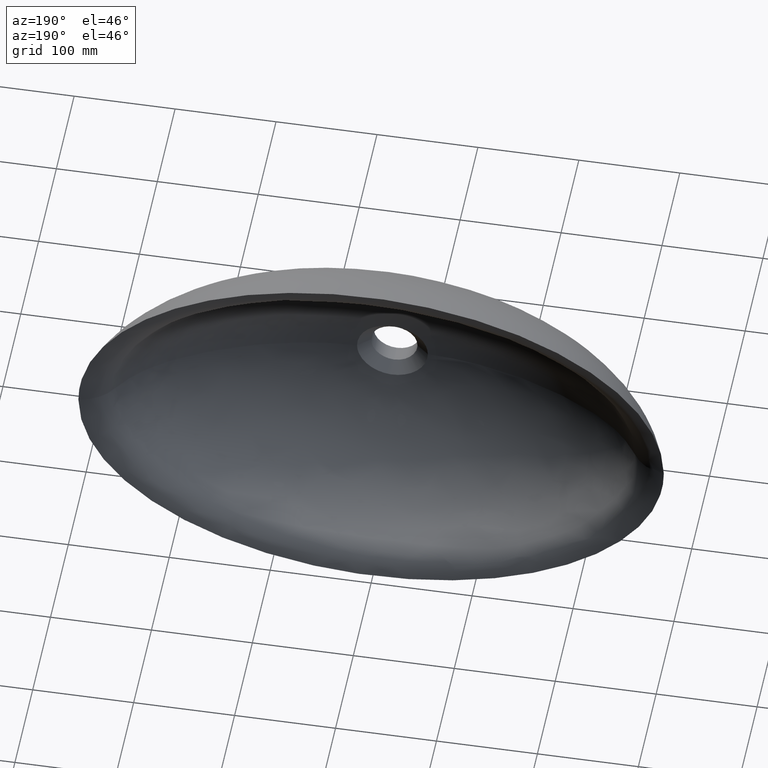
[diagram: clean part render]
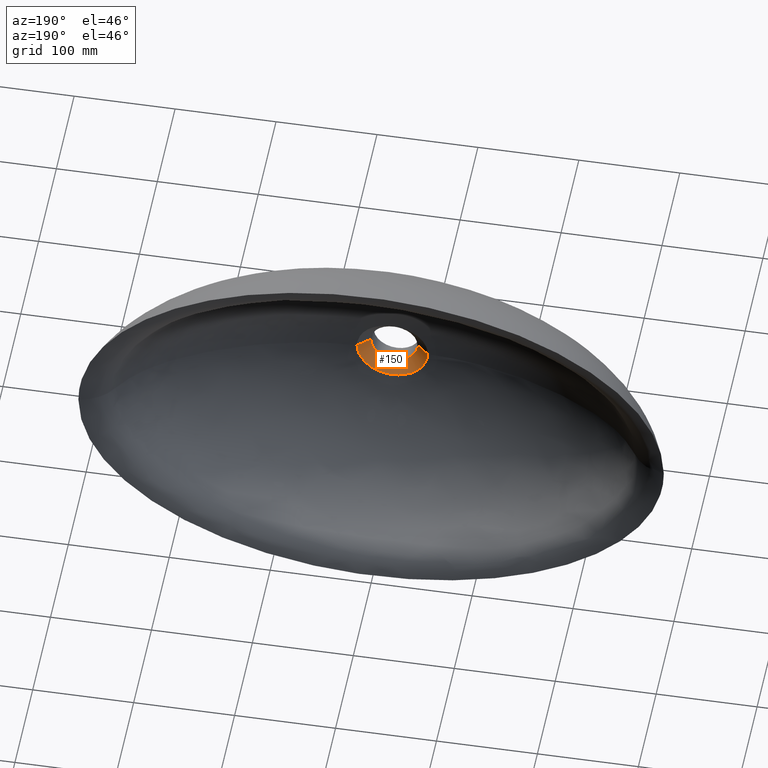
[diagram: same view with one face highlighted and labeled with its STEP entity id]
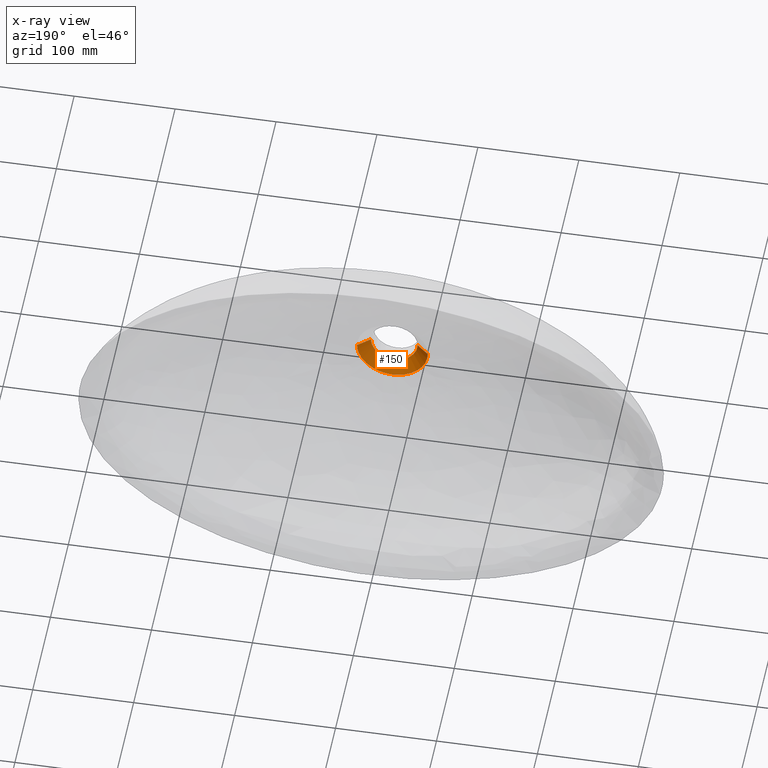
[diagram: x-ray of the same camera — body ghosted, the highlighted face saturated]
A machine part, auxiliary view. The second image highlights one B-rep face of the part: STEP entity #150.
The next image is the same camera in x-ray: the body ghosted, the highlighted face saturated — about 0% of this face is hidden behind the body in this view.
In plain terms, the highlighted face is a freeform B-spline surface patch.
Its self-contained STEP definition (entity closure, byte-faithful):
#9 = CARTESIAN_POINT ( 'NONE',  ( -22.20638049084541900, -129.9327655808706100, -5.931206422693631600 ) ) ;
#11 = CARTESIAN_POINT ( 'NONE',  ( 5.182036084739878300, -129.0068963461424700, -22.40410019023897400 ) ) ;
#15 = CARTESIAN_POINT ( 'NONE',  ( -22.10396400182857900, -129.9244764650093800, -6.300077398847055800 ) ) ;
#17 = CARTESIAN_POINT ( 'NONE',  ( 0.7275229587664344700, -128.9462485909234000, -22.99096794221466000 ) ) ;
#20 = CARTESIAN_POINT ( 'NONE',  ( -0.3877369269977006800, -128.9452850982749200, -22.99969466012950600 ) ) ;
#26 = CARTESIAN_POINT ( 'NONE',  ( -20.93718339299350400, -129.8328498744681700, -9.518158200017534700 ) ) ;
#29 = CARTESIAN_POINT ( 'NONE',  ( 1.844631178475523200, -128.9533371807943900, -22.92525621476750800 ) ) ;
#32 = CARTESIAN_POINT ( 'NONE',  ( -20.61562514927902600, -129.8082660264115900, -10.20453767899805600 ) ) ;
#34 = CARTESIAN_POINT ( 'NONE',  ( -19.90141464338458400, -129.7545034899107500, -11.53520301647734500 ) ) ;
#41 = CARTESIAN_POINT ( 'NONE',  ( -5.943447229743942900, -129.0258430713646500, -22.21256488871483000 ) ) ;
#44 = CARTESIAN_POINT ( 'NONE',  ( -7.409199717056849500, -129.0692863111703200, -21.75706560866234100 ) ) ;
#47 = CARTESIAN_POINT ( 'NONE',  ( -7.043019596947341500, -129.0578481439415000, -21.87816520406903500 ) ) ;
#52 = CARTESIAN_POINT ( 'NONE',  ( -0.7585828168431890700, -128.9463679671021900, -22.98987467977801600 ) ) ;
#54 = CARTESIAN_POINT ( 'NONE',  ( -5.205991890946514800, -129.0074553047618300, -22.39848364107218300 ) ) ;
#58 = CARTESIAN_POINT ( 'NONE',  ( -8.132068145911025800, -129.0933320260017200, -21.49851881031285900 ) ) ;
#61 = CARTESIAN_POINT ( 'NONE',  ( -1.500592392403680800, -128.9505178497223300, -22.95149616130629200 ) ) ;
#63 = CARTESIAN_POINT ( 'NONE',  ( -2.984782282537142200, -128.9655878655401000, -22.80953333346926100 ) ) ;
#69 = CARTESIAN_POINT ( 'NONE',  ( -3.726597108023529200, -128.9773281200630800, -22.69695819289092500 ) ) ;
#73 = CARTESIAN_POINT ( 'NONE',  ( -18.24102723270177900, -129.6337635480863900, -14.04087494842923600 ) ) ;
#76 = CARTESIAN_POINT ( 'NONE',  ( -1.871691968735989600, -128.9535842060605000, -22.92294261070392000 ) ) ;
#84 = CARTESIAN_POINT ( 'NONE',  ( -14.34962079156393200, -129.3821989753484700, -18.00119854613035000 ) ) ;
#87 = CARTESIAN_POINT ( 'NONE',  ( -14.05217895906831100, -129.3650409897301800, -18.23246005305162100 ) ) ;
#89 = CARTESIAN_POINT ( 'NONE',  ( -19.51650313709478700, -129.7258998581859000, -12.18384280413071100 ) ) ;
#92 = CARTESIAN_POINT ( 'NONE',  ( -15.76774066174182700, -129.4679055288340200, -16.79179845030585100 ) ) ;
#97 = CARTESIAN_POINT ( 'NONE',  ( -18.89860911622934800, -129.6807370011431700, -13.13313067316313700 ) ) ;
#98 = CARTESIAN_POINT ( 'NONE',  ( -18.68385338672377600, -129.6652622607449500, -13.44013207777596000 ) ) ;
#100 = CARTESIAN_POINT ( 'NONE',  ( -18.01300254336679500, -129.6177423092270300, -14.33455956704312800 ) ) ;
#103 = CARTESIAN_POINT ( 'NONE',  ( -17.30908291405495100, -129.5690132043638100, -15.19615682376681100 ) ) ;
#105 = CARTESIAN_POINT ( 'NONE',  ( -16.81339508215306800, -129.5356247641420600, -15.74465914215888600 ) ) ;
#112 = CARTESIAN_POINT ( 'NONE',  ( -13.44748583689724700, -129.3311849050252500, -18.67865991560128000 ) ) ;
#114 = CARTESIAN_POINT ( 'NONE',  ( -19.31497476785876800, -129.7110588715143300, -12.50501982652383000 ) ) ;
#117 = CARTESIAN_POINT ( 'NONE',  ( -13.14027587254877700, -129.3144835532723700, -18.89368868183274600 ) ) ;
#124 = CARTESIAN_POINT ( 'NONE',  ( -12.20476236909631000, -129.2653138738664900, -19.51436988958619500 ) ) ;
#138 = CARTESIAN_POINT ( 'NONE',  ( -11.56150963931793800, -129.2336661353212200, -19.89686037348474900 ) ) ;
#140 = CARTESIAN_POINT ( 'NONE',  ( -10.23193691526182300, -129.1737069861677600, -20.60215317828565800 ) ) ;
#143 = CARTESIAN_POINT ( 'NONE',  ( -9.545650253824261400, -129.1453363764486800, -20.92486507661077900 ) ) ;
#147 = CARTESIAN_POINT ( 'NONE',  ( -8.489292513039895700, -129.1059495510970700, -21.36097804197116900 ) ) ;
#148 = CARTESIAN_POINT ( 'NONE',  ( 3.703013377428054900, -128.9769212744104400, -22.70090741573911000 ) ) ;
#150 = ADVANCED_FACE ( 'NONE', ( #2256 ), #3873, .T. ) ;
#161 = CARTESIAN_POINT ( 'NONE',  ( -22.39374021586419200, -129.9480762710507200, -5.186848664356591400 ) ) ;
#164 = CARTESIAN_POINT ( 'NONE',  ( -22.70207039070443900, -129.9737659707573400, -3.696753791384323100 ) ) ;
#167 = CARTESIAN_POINT ( 'NONE',  ( -15.21776599681151300, -129.4335904140463900, -17.29038332383060000 ) ) ;
#170 = VERTEX_POINT ( 'NONE', #2901 ) ;
#181 = CARTESIAN_POINT ( 'NONE',  ( -21.77109200074436400, -129.8978072588452600, -7.396017464037187000 ) ) ;
#186 = CARTESIAN_POINT ( 'NONE',  ( 0.3537860884811920300, -128.9452192114666500, -23.00029199723449500 ) ) ;
#192 = CARTESIAN_POINT ( 'NONE',  ( -22.81379052725114300, -129.9834048698737100, -2.952791977512429600 ) ) ;
#193 = CARTESIAN_POINT ( 'NONE',  ( -22.96269929463692000, -129.9965158692118600, -1.471281682887899200 ) ) ;
#202 = CARTESIAN_POINT ( 'NONE',  ( 5.918851475239826200, -129.0252058952685000, -22.21906558096137400 ) ) ;
#206 = CARTESIAN_POINT ( 'NONE',  ( -23.00000035428656600, -129.9999997479881700, -0.7335224326141642800 ) ) ;
#218 = CARTESIAN_POINT ( 'NONE',  ( -22.47806174085928500, -129.9550475655900400, -4.813709599045879800 ) ) ;
#224 = CARTESIAN_POINT ( 'NONE',  ( -21.51484313713838900, -129.8776108364601200, -8.114163243017413800 ) ) ;
#229 = CARTESIAN_POINT ( 'NONE',  ( -22.99999999999998600, -129.9999999999998900, -6.667843360785852300E-015 ) ) ;
#237 = CARTESIAN_POINT ( 'NONE',  ( -35.07727139900981700, -119.8659660234628900, -6.613633252161577000E-015 ) ) ;
#240 = CARTESIAN_POINT ( 'NONE',  ( -35.07727224802261600, -119.8659662640969100, 1.123272766272968500 ) ) ;
#241 = CARTESIAN_POINT ( 'NONE',  ( -35.01756473054868500, -119.8626495104425700, 2.251162172046565300 ) ) ;
#247 = CARTESIAN_POINT ( 'NONE',  ( -34.77767791376415800, -119.8498789306034200, 4.518837419855861600 ) ) ;
#252 = CARTESIAN_POINT ( 'NONE',  ( -34.59936534984235800, -119.8405263528665900, 5.639626104646007200 ) ) ;
#255 = CARTESIAN_POINT ( 'NONE',  ( -34.13384813538590400, -119.8167132757380200, 7.848649271624730700 ) ) ;
#260 = CARTESIAN_POINT ( 'NONE',  ( -33.84650826191287400, -119.8022382770288600, 8.937990341397533500 ) ) ;
#270 = CARTESIAN_POINT ( 'NONE',  ( -33.16550677663917700, -119.7686408402756500, 11.08536483687823600 ) ) ;
#274 = CARTESIAN_POINT ( 'NONE',  ( -32.77163414303731800, -119.7495060802621800, 12.14373841864653300 ) ) ;
#280 = CARTESIAN_POINT ( 'NONE',  ( -32.10074693659807100, -119.7175779825870600, 13.70569133775858000 ) ) ;
#286 = CARTESIAN_POINT ( 'NONE',  ( -31.86324030507235600, -119.7063736088297400, 14.22286830768966600 ) ) ;
#296 = CARTESIAN_POINT ( 'NONE',  ( -31.36166483232710800, -119.6829506562704100, 15.24675252642629500 ) ) ;
#303 = CARTESIAN_POINT ( 'NONE',  ( -31.09929984608229600, -119.6708117788153200, 15.75004415899778800 ) ) ;
#305 = CARTESIAN_POINT ( 'NONE',  ( -30.27798230490322200, -119.6332107058786000, 17.23387490245346500 ) ) ;
#309 = CARTESIAN_POINT ( 'NONE',  ( -29.68381959756485200, -119.6065219152787900, 18.19102321844449900 ) ) ;
#316 = CARTESIAN_POINT ( 'NONE',  ( -28.40470716506387200, -119.5506515614328000, 20.03808239617842100 ) ) ;
#318 = CARTESIAN_POINT ( 'NONE',  ( -27.71943343237509800, -119.5214469382557100, 20.92875906209233600 ) ) ;
#328 = CARTESIAN_POINT ( 'NONE',  ( -26.62290755470641600, -119.4762658222184100, 22.21425071380444300 ) ) ;
#333 = CARTESIAN_POINT ( 'NONE',  ( -26.24553858271296400, -119.4609594348729000, 22.63470854355165000 ) ) ;
#335 = CARTESIAN_POINT ( 'NONE',  ( -25.46823512418341200, -119.4300012592300800, 23.45787100669769400 ) ) ;
#339 = CARTESIAN_POINT ( 'NONE',  ( -25.06650785454471000, -119.4142790278560300, 23.86228639431178100 ) ) ;
#346 = CARTESIAN_POINT ( 'NONE',  ( -24.24499697014803300, -119.3827851835412700, 24.64832017763533800 ) ) ;
#349 = CARTESIAN_POINT ( 'NONE',  ( -23.82632549783430800, -119.3670539242301100, 25.02906091872949200 ) ) ;
#350 = CARTESIAN_POINT ( 'NONE',  ( -22.97239473409909000, -119.3356969333701400, 25.76763314468619700 ) ) ;
#356 = CARTESIAN_POINT ( 'NONE',  ( -22.53732450821337700, -119.3200783110140400, 26.12529305824864100 ) ) ;
#358 = CARTESIAN_POINT ( 'NONE',  ( -21.20819735151328400, -119.2735757289578500, 27.16409609575961400 ) ) ;
#362 = CARTESIAN_POINT ( 'NONE',  ( -20.29026002023124800, -119.2430452543947900, 27.81112107414343300 ) ) ;
#365 = CARTESIAN_POINT ( 'NONE',  ( -18.39147404448231500, -119.1838402669724400, 29.01611581660466400 ) ) ;
#375 = CARTESIAN_POINT ( 'NONE',  ( -17.41040951969319300, -119.1551670371302500, 29.57404873795718100 ) ) ;
#377 = CARTESIAN_POINT ( 'NONE',  ( -15.89132728385359300, -119.1142327569035500, 30.34416592780073400 ) ) ;
#383 = CARTESIAN_POINT ( 'NONE',  ( -15.37569877617015700, -119.1009012334708900, 30.59024488150278700 ) ) ;
#387 = CARTESIAN_POINT ( 'NONE',  ( -14.33497960743252600, -119.0751996394101000, 31.05697817400730200 ) ) ;
#414 = CARTESIAN_POINT ( 'NONE',  ( -13.81099327474147200, -119.0628519015857200, 31.27726024408516300 ) ) ;
#418 = CARTESIAN_POINT ( 'NONE',  ( -12.22919995264767800, -119.0274622368577200, 31.89926100320043600 ) ) ;
#420 = CARTESIAN_POINT ( 'NONE',  ( -11.15870101255846000, -119.0059852003592600, 32.26386568732486600 ) ) ;
#429 = CARTESIAN_POINT ( 'NONE',  ( -8.989636401146315200, -118.9680646936800900, 32.89319685497281400 ) ) ;
#431 = CARTESIAN_POINT ( 'NONE',  ( -7.889845250719472100, -118.9516008468160100, 33.15830806613757200 ) ) ;
#436 = CARTESIAN_POINT ( 'NONE',  ( 13.42814718263385600, -129.3295622160694100, -18.70370704446003500 ) ) ;
#438 = CARTESIAN_POINT ( 'NONE',  ( -22.21156491124142100, -129.9330953621330900, 5.946517207334739700 ) ) ;
#439 = EDGE_CURVE ( 'NONE', #3773, #3473, #1014, .T. ) ;
#443 = CARTESIAN_POINT ( 'NONE',  ( -6.218996068021404300, -118.9313004219464700, 33.47986992997994100 ) ) ;
#449 = CARTESIAN_POINT ( 'NONE',  ( -5.657482866752387100, -118.9252611218373900, 33.57443249015178600 ) ) ;
#451 = CARTESIAN_POINT ( 'NONE',  ( -4.527766160265325200, -118.9147704302802700, 33.73743530313157600 ) ) ;
#477 = CARTESIAN_POINT ( 'NONE',  ( -3.957704750503944900, -118.9103116819037400, 33.80598737441197000 ) ) ;
#500 = CARTESIAN_POINT ( 'NONE',  ( -2.252807905438233900, -118.8995991371280800, 33.96968785627705500 ) ) ;
#509 = CARTESIAN_POINT ( 'NONE',  ( -1.120248741214917600, -118.8959418790158500, 34.02406038260443200 ) ) ;
#518 = CARTESIAN_POINT ( 'NONE',  ( 1.140321631198045300, -118.8959857325157700, 34.02341017251725200 ) ) ;
#531 = CARTESIAN_POINT ( 'NONE',  ( 2.267693814893307000, -118.8996829468058400, 33.96841701839483800 ) ) ;
#534 = CARTESIAN_POINT ( 'NONE',  ( 3.955057238938226600, -118.9102999366622400, 33.80616189230904200 ) ) ;
#542 = CARTESIAN_POINT ( 'NONE',  ( 4.516892643981876200, -118.9146847328287000, 33.73875397690186900 ) ) ;
#582 = CARTESIAN_POINT ( 'NONE',  ( 5.639401846370225800, -118.9250783584963600, 33.57728477972236200 ) ) ;
#597 = CARTESIAN_POINT ( 'NONE',  ( 6.200235703193959200, -118.9310900247422200, 33.48317884101914600 ) ) ;
#600 = CARTESIAN_POINT ( 'NONE',  ( 7.320155497019674900, -118.9446622219361300, 33.26824013022437800 ) ) ;
#613 = CARTESIAN_POINT ( 'NONE',  ( 7.881155314062738200, -118.9522552944164700, 33.14687295796792200 ) ) ;
#633 = CARTESIAN_POINT ( 'NONE',  ( 8.989401242733290300, -118.9687420191818600, 32.87993132228501700 ) ) ;
#640 = CARTESIAN_POINT ( 'NONE',  ( 9.539102446440365300, -118.9776617862655000, 32.73394759499167600 ) ) ;
#656 = CARTESIAN_POINT ( 'NONE',  ( 11.17125337782330500, -119.0062226444863100, 32.25987504317176000 ) ) ;
#670 = CARTESIAN_POINT ( 'NONE',  ( 12.24064830804505100, -119.0277050975132800, 31.89507041160943900 ) ) ;
#672 = CARTESIAN_POINT ( 'NONE',  ( 14.33983585093013100, -119.0746971440024100, 31.06899248541836300 ) ) ;
#692 = CARTESIAN_POINT ( 'NONE',  ( 15.37074025335849500, -119.1002364852399500, 30.60722455804846100 ) ) ;
#714 = CARTESIAN_POINT ( 'NONE',  ( 16.88559765919018200, -119.1410095258966600, 29.84052780468243400 ) ) ;
#731 = CARTESIAN_POINT ( 'NONE',  ( 17.38591381281579400, -119.1550360806514800, 29.57211895489733400 ) ) ;
#749 = CARTESIAN_POINT ( 'NONE',  ( 18.37682765895789700, -119.1838672302116000, 29.00905919351300400 ) ) ;
#751 = CARTESIAN_POINT ( 'NONE',  ( 18.86572196654433100, -119.1986236699435900, 28.71527504003447000 ) ) ;
#758 = CARTESIAN_POINT ( 'NONE',  ( 20.30134445265194600, -119.2433986054859100, 27.80383951584213900 ) ) ;
#767 = CARTESIAN_POINT ( 'NONE',  ( 21.22225988042355400, -119.2740527263554100, 27.15377293152372900 ) ) ;
#777 = CARTESIAN_POINT ( 'NONE',  ( 22.99177361400276700, -119.3359934932196900, 25.76943295665066100 ) ) ;
#782 = CARTESIAN_POINT ( 'NONE',  ( 23.84057133465799800, -119.3672825901241600, 25.03513295332019700 ) ) ;
#798 = CARTESIAN_POINT ( 'NONE',  ( 25.05926358394319900, -119.4140004805273600, 23.86929133384665000 ) ) ;
#804 = CARTESIAN_POINT ( 'NONE',  ( 25.45639043897776000, -119.4295358441013200, 23.46993848929803400 ) ) ;
#838 = CARTESIAN_POINT ( 'NONE',  ( 26.23216568770232700, -119.4604206995920900, 22.64933062870602100 ) ) ;
#851 = CARTESIAN_POINT ( 'NONE',  ( 26.61064696454534600, -119.4757642979035500, 22.22826515515922100 ) ) ;
#862 = CARTESIAN_POINT ( 'NONE',  ( 27.34956353804677000, -119.5062032798678900, 21.36271987981795200 ) ) ;
#867 = CARTESIAN_POINT ( 'NONE',  ( 27.70765762444573400, -119.5212034503888700, 20.92087215091183300 ) ) ;
#876 = CARTESIAN_POINT ( 'NONE',  ( 28.39770564238163100, -119.5505238687721700, 20.02400018981378300 ) ) ;
#881 = CARTESIAN_POINT ( 'NONE',  ( 1.472079309489260400, -128.9503083088433500, -22.95344393011702500 ) ) ;
#891 = CARTESIAN_POINT ( 'NONE',  ( 28.73045291249556900, -119.5648771852928100, 19.56804520591169800 ) ) ;
#903 = CARTESIAN_POINT ( 'NONE',  ( 29.69176708081446100, -119.6068744036807500, 18.17884599559390300 ) ) ;
#917 = CARTESIAN_POINT ( 'NONE',  ( 30.28390894046263800, -119.6334797862171500, 17.22369496760625300 ) ) ;
#924 = CARTESIAN_POINT ( 'NONE',  ( 31.37197478822284000, -119.6832974777845400, 15.25688655968702700 ) ) ;
#930 = CARTESIAN_POINT ( 'NONE',  ( 31.86842698151010100, -119.7065281681973800, 14.24422690294584000 ) ) ;
#939 = CARTESIAN_POINT ( 'NONE',  ( 32.76335547162262400, -119.7491057135228200, 12.16532037561469400 ) ) ;
#948 = CARTESIAN_POINT ( 'NONE',  ( 33.16401258575034900, -119.7685660431760900, 11.09056864648065700 ) ) ;
#952 = CARTESIAN_POINT ( 'NONE',  ( 33.84839550178983100, -119.8023324655690900, 8.931547102053006200 ) ) ;
#956 = CARTESIAN_POINT ( 'NONE',  ( 34.13579779081109700, -119.8168123428072000, 7.840174387353244800 ) ) ;
#957 = CARTESIAN_POINT ( 'NONE',  ( 34.59937621159267000, -119.8405275819068000, 5.638794396262650100 ) ) ;
#958 = CARTESIAN_POINT ( 'NONE',  ( 34.77586828312030300, -119.8497849317002300, 4.528220008139072700 ) ) ;
#959 = ORIENTED_EDGE ( 'NONE', *, *, #3117, .T. ) ;
#961 = CARTESIAN_POINT ( 'NONE',  ( 35.01440772425652900, -119.8624791511172600, 2.288570007990099200 ) ) ;
#969 = CARTESIAN_POINT ( 'NONE',  ( 35.07648216493567600, -119.8659220435362700, 1.159572929856056000 ) ) ;
#972 = CARTESIAN_POINT ( 'NONE',  ( 35.07804580494431700, -119.8660091788308100, -1.116299174828473200 ) ) ;
#979 = CARTESIAN_POINT ( 'NONE',  ( 35.01745141005582700, -119.8626436452633900, -2.249575356788222200 ) ) ;
#981 = CARTESIAN_POINT ( 'NONE',  ( 34.77946650395974600, -119.8499739823139000, -4.504569005313511500 ) ) ;
#982 = CARTESIAN_POINT ( 'NONE',  ( 34.60225405187130600, -119.8406749709081700, -5.625412855150533400 ) ) ;
#994 = CARTESIAN_POINT ( 'NONE',  ( 34.24957456274822900, -119.8226327257575700, -7.299743573581808100 ) ) ;
#1013 = CARTESIAN_POINT ( 'NONE',  ( 34.11776049351882300, -119.8159470938440900, -7.855006899602787300 ) ) ;
#1014 = B_SPLINE_CURVE_WITH_KNOTS ( 'NONE', 1,
 ( #2883, #2936 ),
 .UNSPECIFIED., .F., .F.,
 ( 2, 2 ),
 ( 0.0000000000000000000, 0.9966879701372902700 ),
 .UNSPECIFIED. ) ;
#1029 = CARTESIAN_POINT ( 'NONE',  ( 35.07727202778604400, -119.8659660057794300, 0.007212293958213536100 ) ) ;
#1042 = CARTESIAN_POINT ( 'NONE',  ( 33.82799417500732600, -119.8013963060532300, -8.952751159164629200 ) ) ;
#1057 = CARTESIAN_POINT ( 'NONE',  ( 33.66972485119930500, -119.7935144530596900, -9.496773325788677100 ) ) ;
#1059 = CARTESIAN_POINT ( 'NONE',  ( 33.15620056922490000, -119.7681861593692100, -11.11194396166803600 ) ) ;
#1065 = CARTESIAN_POINT ( 'NONE',  ( 32.76196917343034400, -119.7490409399351000, -12.16800806665813200 ) ) ;
#1067 = CARTESIAN_POINT ( 'NONE',  ( 31.87178093635216300, -119.7066865613761200, -14.23696646545244700 ) ) ;
#1069 = CARTESIAN_POINT ( 'NONE',  ( 31.37526229154530500, -119.6834495473960100, -15.25068913635455400 ) ) ;
#1076 = CARTESIAN_POINT ( 'NONE',  ( 30.28022458467738400, -119.6333095470566700, -17.23060971339436900 ) ) ;
#1077 = CARTESIAN_POINT ( 'NONE',  ( 29.67574839140085200, -119.6061582558768400, -18.20424652357836200 ) ) ;
#1080 = CARTESIAN_POINT ( 'NONE',  ( 28.38679773126343900, -119.5498805865477300, -20.06234880054950400 ) ) ;
#1083 = CARTESIAN_POINT ( 'NONE',  ( 27.69906281791302400, -119.5205905584707700, -20.95413382851247500 ) ) ;
#1084 = CARTESIAN_POINT ( 'NONE',  ( 26.24046789536923900, -119.4605252580748700, -22.66106344431286600 ) ) ;
#1091 = CARTESIAN_POINT ( 'NONE',  ( 25.46940976587204400, -119.4297267591629300, -23.47673069467263200 ) ) ;
#1093 = B_SPLINE_CURVE_WITH_KNOTS ( 'NONE', 3,
 ( #1825, #1029, #3786, #3609 ),
 .UNSPECIFIED., .F., .F.,
 ( 4, 4 ),
 ( 0.4998979837006320400, 0.5000000000000000000 ),
 .UNSPECIFIED. ) ;
#1095 = CARTESIAN_POINT ( 'NONE',  ( 23.84298567081253500, -119.3673715957186200, -25.03302368500463300 ) ) ;
#1096 = CARTESIAN_POINT ( 'NONE',  ( 22.98709558394537600, -119.3358087424175100, -25.77406614336498300 ) ) ;
#1104 = CARTESIAN_POINT ( 'NONE',  ( 21.19049303271597400, -119.2729621911743300, -27.17763169307491800 ) ) ;
#1105 = CARTESIAN_POINT ( 'NONE',  ( 20.26530908977244700, -119.2422304879679900, -27.82819804142350200 ) ) ;
#1107 = CARTESIAN_POINT ( 'NONE',  ( 18.36086665144279800, -119.1829238205151400, -29.03425961553827200 ) ) ;
#1110 = CARTESIAN_POINT ( 'NONE',  ( 17.38197982462516600, -119.1543667696306600, -29.58936301171131700 ) ) ;
#1111 = CARTESIAN_POINT ( 'NONE',  ( 15.37184178931789300, -119.1002692158533700, -30.60660407066341200 ) ) ;
#1117 = CARTESIAN_POINT ( 'NONE',  ( 14.34045381774623500, -119.0747039112630400, -31.06892267260984400 ) ) ;
#1120 = CARTESIAN_POINT ( 'NONE',  ( 12.75456368788983700, -119.0392131042506200, -31.69274508630130800 ) ) ;
#1124 = CARTESIAN_POINT ( 'NONE',  ( 12.21824658787473400, -119.0278406144274300, -31.88935652864725200 ) ) ;
#1126 = CARTESIAN_POINT ( 'NONE',  ( 11.13636009686557300, -119.0062489048592900, -32.25756395455179200 ) ) ;
#1132 = CARTESIAN_POINT ( 'NONE',  ( 10.59340892779148100, -118.9960791230432300, -32.42833959179952800 ) ) ;
#1133 = CARTESIAN_POINT ( 'NONE',  ( 8.958444031504463100, -118.9675677433897500, -32.90129573087028100 ) ) ;
#1142 = CARTESIAN_POINT ( 'NONE',  ( 7.857843939671393900, -118.9511582088120000, -33.16539081866092400 ) ) ;
#1144 = CARTESIAN_POINT ( 'NONE',  ( 5.638915079863027200, -118.9243078385929400, -33.59056034654870600 ) ) ;
#1147 = CARTESIAN_POINT ( 'NONE',  ( 4.519663725445632900, -118.9138507178649600, -33.75190139200987000 ) ) ;
#1152 = CARTESIAN_POINT ( 'NONE',  ( 2.826505636617860300, -118.9031999055090400, -33.91466644566190100 ) ) ;
#1158 = CARTESIAN_POINT ( 'NONE',  ( 2.259021845688046000, -118.9004893980324100, -33.95568526062921700 ) ) ;
#1159 = CARTESIAN_POINT ( 'NONE',  ( 1.120121244454920700, -118.8968562462549300, -34.01044443191566600 ) ) ;
#1164 = CARTESIAN_POINT ( 'NONE',  ( 0.5459396670728256000, -118.8959348792443900, -34.02416644042276100 ) ) ;
#1178 = CARTESIAN_POINT ( 'NONE',  ( -0.5983265802862672800, -118.8959938560702300, -34.02328736253390700 ) ) ;
#1179 = CARTESIAN_POINT ( 'NONE',  ( -1.167749758196551700, -118.8969630829704200, -34.00884322259538100 ) ) ;
#1195 = CARTESIAN_POINT ( 'NONE',  ( -2.302508704744063100, -118.9006769180591200, -33.95284914864262000 ) ) ;
#1198 = CARTESIAN_POINT ( 'NONE',  ( -2.867666060499777000, -118.9034209710397400, -33.91130699556163800 ) ) ;
#1207 = CARTESIAN_POINT ( 'NONE',  ( -4.556779801001156600, -118.9141639846279000, -33.74707420312784500 ) ) ;
#1219 = CARTESIAN_POINT ( 'NONE',  ( -5.674397354159372900, -118.9246720799872300, -33.58488531856599500 ) ) ;
#1229 = CARTESIAN_POINT ( 'NONE',  ( -7.893680429621827700, -118.9516591001929700, -33.15736376617402900 ) ) ;
#1253 = B_SPLINE_CURVE_WITH_KNOTS ( 'NONE', 3,
 ( #3766, #1860, #1786, #1598, #1776, #1771, #1764, #1761, #1754, #1749, #1747, #1737, #1734, #1729, #1723, #1714, #1706, #2067, #3571, #3545, #2964, #2132, #2146, #2117, #2143, #2159, #3262, #3447, #3246, #3226 ),
 .UNSPECIFIED., .F., .F.,
 ( 4, 2, 2, 2, 2, 2, 2, 2, 2, 2, 2, 2, 2, 2, 4 ),
 ( 0.1080104620633774600, 0.1091345417052455700, 0.1102586213471136900, 0.1125067806308499000, 0.1147549399145861300, 0.1170030991983223600, 0.1214994177657948100, 0.1237475770495310400, 0.1259957363332672700, 0.1304920549007397300, 0.1327402141844759300, 0.1349883734682121600, 0.1372365327519483900, 0.1394846920356845900, 0.1439810106031570400 ),
 .UNSPECIFIED. ) ;
#1254 = CARTESIAN_POINT ( 'NONE',  ( -8.995174217462681200, -118.9681389911297600, -32.89202270921557400 ) ) ;
#1256 = CARTESIAN_POINT ( 'NONE',  ( -10.63607603198013300, -118.9968599675050500, -32.41527838335353800 ) ) ;
#1257 = CARTESIAN_POINT ( 'NONE',  ( -11.18230510234585800, -119.0071300682178600, -32.24268096259883300 ) ) ;
#1264 = CARTESIAN_POINT ( 'NONE',  ( -12.26119383906394100, -119.0287365442877200, -31.87392215414858000 ) ) ;
#1286 = CARTESIAN_POINT ( 'NONE',  ( -12.79465847991400700, -119.0400818631002300, -31.67762669280382300 ) ) ;
#1288 = CARTESIAN_POINT ( 'NONE',  ( -14.37462472923431800, -119.0755285155606300, -31.05410946730226500 ) ) ;
#1296 = CARTESIAN_POINT ( 'NONE',  ( -15.40445594877224500, -119.1011008139265800, -30.59135514943413600 ) ) ;
#1318 = CARTESIAN_POINT ( 'NONE',  ( -17.41371626830536800, -119.1552686461605200, -29.57200486230788200 ) ) ;
#1323 = CARTESIAN_POINT ( 'NONE',  ( -18.39418810029581100, -119.1839176331701800, -29.01463280978400800 ) ) ;
#1334 = CARTESIAN_POINT ( 'NONE',  ( -19.82513759215633400, -119.2285462113913600, -28.10617242223798200 ) ) ;
#1340 = CARTESIAN_POINT ( 'NONE',  ( -20.29625042116464700, -119.2437245784029300, -27.79065172794998900 ) ) ;
#1345 = CARTESIAN_POINT ( 'NONE',  ( -21.22528392939657100, -119.2745363495548500, -27.13454934653584500 ) ) ;
#1350 = CARTESIAN_POINT ( 'NONE',  ( -21.68319728240190600, -119.2901730351524900, -26.79380246012215500 ) ) ;
#1351 = CARTESIAN_POINT ( 'NONE',  ( -23.02188385042448000, -119.3370775600401700, -25.74456422113511100 ) ) ;
#1354 = CARTESIAN_POINT ( 'NONE',  ( -23.87284211693834000, -119.3684890749621100, -25.00614621375843800 ) ) ;
#1356 = ORIENTED_EDGE ( 'NONE', *, *, #4303, .F. ) ;
#1366 = CARTESIAN_POINT ( 'NONE',  ( -26.26318127480571400, -119.4614406575730800, -22.63624049929320500 ) ) ;
#1397 = CARTESIAN_POINT ( 'NONE',  ( -27.35671225654267900, -119.5065029601054200, -21.35385184915260800 ) ) ;
#1400 = CARTESIAN_POINT ( 'NONE',  ( -27.71102504763800700, -119.5213456445708700, -20.91659315807277500 ) ) ;
#1411 = CARTESIAN_POINT ( 'NONE',  ( -28.39900044128111400, -119.5505797798817300, -20.02221896786489500 ) ) ;
#1424 = CARTESIAN_POINT ( 'NONE',  ( -28.73258919279604500, -119.5649685343546200, -19.56519133269599600 ) ) ;
#1434 = CARTESIAN_POINT ( 'NONE',  ( -29.37899260388298500, -119.5932121467312300, -18.63060057432989700 ) ) ;
#1440 = CARTESIAN_POINT ( 'NONE',  ( -29.69164225077465600, -119.6070615229455000, -18.15299904589254600 ) ) ;
#1443 = CARTESIAN_POINT ( 'NONE',  ( -30.28836843140835100, -119.6337993013184900, -17.18911389412605900 ) ) ;
#1448 = CARTESIAN_POINT ( 'NONE',  ( -30.57402763415815600, -119.6467574545439200, -16.70057115600613400 ) ) ;
#1467 = CARTESIAN_POINT ( 'NONE',  ( -31.39154135316090000, -119.6842050085986200, -15.21878596841447300 ) ) ;
#1470 = CARTESIAN_POINT ( 'NONE',  ( -31.88595626787563800, -119.7073535330043800, -14.20672375112146400 ) ) ;
#1498 = CARTESIAN_POINT ( 'NONE',  ( -32.77389281307271300, -119.7496159772380500, -12.13751137942268500 ) ) ;
#1513 = CARTESIAN_POINT ( 'NONE',  ( -33.16770896604041500, -119.7687475935118000, -11.07946227622089100 ) ) ;
#1523 = CARTESIAN_POINT ( 'NONE',  ( -33.68069048493066500, -119.7940585675028600, -9.460325237016471400 ) ) ;
#1540 = CARTESIAN_POINT ( 'NONE',  ( -33.83877855267736800, -119.8019346441527200, -8.914608953856415500 ) ) ;
#1546 = CARTESIAN_POINT ( 'NONE',  ( -34.12857938991809400, -119.8164938310861600, -7.811094731865696700 ) ) ;
#1549 = CARTESIAN_POINT ( 'NONE',  ( -34.25933264072372700, -119.8231292071473500, -7.256756292349142400 ) ) ;
#1562 = CARTESIAN_POINT ( 'NONE',  ( -34.60761829082306200, -119.8409551274948400, -5.592925210560780500 ) ) ;
#1571 = EDGE_CURVE ( 'NONE', #3473, #1953, #4034, .T. ) ;
#1576 = VERTEX_POINT ( 'NONE', #4050 ) ;
#1593 = CARTESIAN_POINT ( 'NONE',  ( -34.78273282597822900, -119.8501466461919400, -4.478727520556851100 ) ) ;
#1594 = CARTESIAN_POINT ( 'NONE',  ( -35.01748730392767300, -119.8626468074927200, -2.244054991514731900 ) ) ;
#1598 = CARTESIAN_POINT ( 'NONE',  ( -1.516466950939790100, -128.9118380207497400, -22.99315555869389600 ) ) ;
#1609 = CARTESIAN_POINT ( 'NONE',  ( -25.49350794869413400, -119.4306786788374700, -23.45192281080781500 ) ) ;
#1611 = CARTESIAN_POINT ( 'NONE',  ( 20.14190751093048000, -119.2388437718811600, -27.89074472390622400 ) ) ;
#1612 = CARTESIAN_POINT ( 'NONE',  ( 20.36634166186064500, -119.2461262201507100, -27.73839510031467300 ) ) ;
#1623 = CARTESIAN_POINT ( 'NONE',  ( 22.10656863986330800, -119.3050067048165100, -26.46198499862399300 ) ) ;
#1662 = CARTESIAN_POINT ( 'NONE',  ( -35.07727139900981700, -119.8659660234628900, -6.613633252161577000E-015 ) ) ;
#1706 = CARTESIAN_POINT ( 'NONE',  ( -15.75486199486921600, -129.4510139792390100, -16.82825825265216900 ) ) ;
#1714 = CARTESIAN_POINT ( 'NONE',  ( -15.19569752022424700, -129.4149119929958500, -17.33522206115992100 ) ) ;
#1723 = CARTESIAN_POINT ( 'NONE',  ( -14.02032028091997000, -129.3409285488874000, -18.29890068436623500 ) ) ;
#1729 = CARTESIAN_POINT ( 'NONE',  ( -13.41376408241812100, -129.3035946390008600, -18.74771374512775800 ) ) ;
#1734 = CARTESIAN_POINT ( 'NONE',  ( -11.53932661625127300, -129.1936782926376000, -19.99856223220973900 ) ) ;
#1737 = CARTESIAN_POINT ( 'NONE',  ( -10.21718720217191200, -129.1235238006846900, -20.70593104494494700 ) ) ;
#1747 = CARTESIAN_POINT ( 'NONE',  ( -8.122553419543587300, -129.0389046001799300, -21.57398780098897000 ) ) ;
#1749 = CARTESIAN_POINT ( 'NONE',  ( -7.403669183494917800, -129.0139741421604400, -21.83109240233936900 ) ) ;
#1754 = CARTESIAN_POINT ( 'NONE',  ( -5.959461240973945800, -128.9726090667160200, -22.26871650040570900 ) ) ;
#1761 = CARTESIAN_POINT ( 'NONE',  ( -5.230496526533869400, -128.9561094390911900, -22.45097275349325700 ) ) ;
#1764 = CARTESIAN_POINT ( 'NONE',  ( -3.759093244754216900, -128.9308065788642400, -22.74364723322586100 ) ) ;
#1771 = CARTESIAN_POINT ( 'NONE',  ( -3.016653797738752600, -128.9220431998749100, -22.85406425280788800 ) ) ;
#1776 = CARTESIAN_POINT ( 'NONE',  ( -1.892791291219996000, -128.9137802087468300, -22.96520529800686100 ) ) ;
#1786 = CARTESIAN_POINT ( 'NONE',  ( -0.7603590950220899800, -128.9093401079421700, -23.03056075318631500 ) ) ;
#1810 = CARTESIAN_POINT ( 'NONE',  ( -35.07727054999702400, -119.8659657828288700, -1.123272766272982000 ) ) ;
#1819 = CARTESIAN_POINT ( 'NONE',  ( -1.291045754732520600E-011, -128.9087874653253300, -23.03999999999999900 ) ) ;
#1825 = CARTESIAN_POINT ( 'NONE',  ( 35.07727144900839300, -119.8659660255377300, 1.080064819839922600E-009 ) ) ;
#1844 = B_SPLINE_CURVE_WITH_KNOTS ( 'NONE', 1,
 ( #3284, #3269 ),
 .UNSPECIFIED., .F., .F.,
 ( 2, 2 ),
 ( 0.0000000000000000000, 0.9966879936139141400 ),
 .UNSPECIFIED. ) ;
#1846 = ORIENTED_EDGE ( 'NONE', *, *, #439, .F. ) ;
#1860 = CARTESIAN_POINT ( 'NONE',  ( -0.3795038736895354800, -128.9087833231271200, -23.03999999999977900 ) ) ;
#1893 = CARTESIAN_POINT ( 'NONE',  ( 7.014420264938754800, -129.0569783056787100, -21.88732838594269500 ) ) ;
#1899 = CARTESIAN_POINT ( 'NONE',  ( -22.99999964571340500, -130.0000002520116600, 0.7335224326141508400 ) ) ;
#1953 = VERTEX_POINT ( 'NONE', #1819 ) ;
#1962 = CARTESIAN_POINT ( 'NONE',  ( -20.42625889516729700, -129.7939880145230800, 10.56362367018799400 ) ) ;
#2004 = EDGE_CURVE ( 'NONE', #1953, #1576, #1253, .T. ) ;
#2014 = ORIENTED_EDGE ( 'NONE', *, *, #1571, .F. ) ;
#2031 = CARTESIAN_POINT ( 'NONE',  ( 8.103303600765416400, -129.0923354137374600, -21.50933546850786400 ) ) ;
#2033 = CARTESIAN_POINT ( 'NONE',  ( -21.76966068537415900, -129.8976945244678200, 7.400021792951355000 ) ) ;
#2042 = CARTESIAN_POINT ( 'NONE',  ( 15.19526447166169100, -129.4322033808156800, -17.31031804157612800 ) ) ;
#2067 = CARTESIAN_POINT ( 'NONE',  ( -17.34900711369871500, -129.5542376910269400, -15.23518826106700900 ) ) ;
#2076 = CARTESIAN_POINT ( 'NONE',  ( -19.89424393861575200, -129.7538953929560500, 11.56623752505779700 ) ) ;
#2086 = CARTESIAN_POINT ( 'NONE',  ( -20.92243018369096300, -129.8317945014404400, 9.529043957178194200 ) ) ;
#2106 = CARTESIAN_POINT ( 'NONE',  ( -22.69678617404120000, -129.9733160871649900, 3.728002706259919900 ) ) ;
#2110 = CARTESIAN_POINT ( 'NONE',  ( -22.39732830282369800, -129.9483100292788400, 5.211162911224479700 ) ) ;
#2115 = CARTESIAN_POINT ( 'NONE',  ( 28.72493379497020200, -119.5646527661020000, -19.57445124286336800 ) ) ;
#2117 = CARTESIAN_POINT ( 'NONE',  ( -21.56554574501131700, -129.8277664615699200, -8.144401748953646000 ) ) ;
#2119 = CARTESIAN_POINT ( 'NONE',  ( 11.54062202703206300, -129.2326691845735200, -19.90880773336586900 ) ) ;
#2122 = CARTESIAN_POINT ( 'NONE',  ( 29.04038453514113300, -119.5784169346728000, -19.12018371881354600 ) ) ;
#2125 = CARTESIAN_POINT ( 'NONE',  ( 11.54179731775409800, -129.2333938426057500, 19.89767913020166600 ) ) ;
#2128 = CARTESIAN_POINT ( 'NONE',  ( 9.522434213875191800, -129.1444134791503300, 20.93525676626402500 ) ) ;
#2130 = CARTESIAN_POINT ( 'NONE',  ( 29.06286861282411800, -119.5793987142452700, -19.08770617656846000 ) ) ;
#2132 = CARTESIAN_POINT ( 'NONE',  ( -20.66865100745972600, -129.7666537897427500, -10.20872264645908500 ) ) ;
#2133 = CARTESIAN_POINT ( 'NONE',  ( 22.09685474493625900, -129.9239035470444900, -6.324729097712064700 ) ) ;
#2135 = CARTESIAN_POINT ( 'NONE',  ( 29.10503107784686300, -119.5812415464949100, -19.02656623205737700 ) ) ;
#2138 = CARTESIAN_POINT ( 'NONE',  ( 29.16802672645979300, -119.5839973777705000, -18.93488990071521600 ) ) ;
#2143 = CARTESIAN_POINT ( 'NONE',  ( -21.81924408742119000, -129.8467243342174100, -7.438301854675378500 ) ) ;
#2146 = CARTESIAN_POINT ( 'NONE',  ( -20.99024887804554100, -129.7877127981225000, -9.529611490834396300 ) ) ;
#2148 = CARTESIAN_POINT ( 'NONE',  ( 29.31328945675591800, -119.5903687468769300, -18.72122096642633000 ) ) ;
#2152 = CARTESIAN_POINT ( 'NONE',  ( 14.03003769784118800, -129.3633384232388200, -18.26128100660504600 ) ) ;
#2154 = CARTESIAN_POINT ( 'NONE',  ( 29.59698010260292700, -119.6028760461063700, -18.29491156549361700 ) ) ;
#2156 = CARTESIAN_POINT ( 'NONE',  ( 29.82867875137414900, -119.6131937738877900, -17.93146405106303500 ) ) ;
#2158 = CARTESIAN_POINT ( 'NONE',  ( 15.74845594267310400, -129.4666862517875600, -16.80993035808973300 ) ) ;
#2159 = CARTESIAN_POINT ( 'NONE',  ( -22.25806706153627700, -129.8826705203540000, -5.998849699057763600 ) ) ;
#2165 = CARTESIAN_POINT ( 'NONE',  ( 30.27745512735012300, -119.6332961282548700, -17.20767810151084700 ) ) ;
#2173 = CARTESIAN_POINT ( 'NONE',  ( 30.55714777119392200, -119.6459863600913300, -16.72930986252674400 ) ) ;
#2175 = CARTESIAN_POINT ( 'NONE',  ( 30.85183287345222800, -119.6594827872551300, -16.19715764995986300 ) ) ;
#2190 = CARTESIAN_POINT ( 'NONE',  ( 30.88692447600357100, -119.6610918691216200, -16.13334167771113000 ) ) ;
#2193 = CARTESIAN_POINT ( 'NONE',  ( 30.95456131696605300, -119.6641970583269800, -16.00939891052212300 ) ) ;
#2199 = CARTESIAN_POINT ( 'NONE',  ( 31.05542878093807600, -119.6688334261898500, -15.82319125487690500 ) ) ;
#2206 = CARTESIAN_POINT ( 'NONE',  ( 27.00520518136665200, -119.4920167771324800, -21.76617703250205000 ) ) ;
#2208 = CARTESIAN_POINT ( 'NONE',  ( 27.05594897797467600, -119.4941102112409200, -21.70646596589594100 ) ) ;
#2215 = CARTESIAN_POINT ( 'NONE',  ( 27.15294397096186100, -119.4981205494596400, -21.59151866823905400 ) ) ;
#2221 = CARTESIAN_POINT ( 'NONE',  ( 27.29717855491689300, -119.5040969208613100, -21.41941012744458900 ) ) ;
#2226 = CARTESIAN_POINT ( 'NONE',  ( -14.90355236190437600, -129.4149663264870800, 17.54828917647640600 ) ) ;
#2230 = CARTESIAN_POINT ( 'NONE',  ( 7.378404505277556400, -129.0683051676252300, -21.76750567933680000 ) ) ;
#2235 = CARTESIAN_POINT ( 'NONE',  ( 27.62503456997846000, -119.5177679218636900, -21.02010285733722500 ) ) ;
#2238 = CARTESIAN_POINT ( 'NONE',  ( 22.38675571821558600, -129.9475016354040800, -5.216431965018621500 ) ) ;
#2244 = CARTESIAN_POINT ( 'NONE',  ( 27.89154391502764300, -119.5290170932217300, -20.68205806278786700 ) ) ;
#2249 = CARTESIAN_POINT ( 'NONE',  ( 28.40623498998697400, -119.5508951920833000, -20.01236538278550400 ) ) ;
#2250 = CARTESIAN_POINT ( 'NONE',  ( 31.28666534919626600, -119.6795005125658000, -15.38667473980446800 ) ) ;
#2256 = FACE_OUTER_BOUND ( 'NONE', #4165, .T. ) ;
#2262 = CARTESIAN_POINT ( 'NONE',  ( 31.73260311936974200, -119.7002207006497100, -14.50569372273283100 ) ) ;
#2263 = CARTESIAN_POINT ( 'NONE',  ( 32.08630497898647600, -119.7168956125992500, -13.73755731681858100 ) ) ;
#2271 = CARTESIAN_POINT ( 'NONE',  ( 32.36496999536587500, -119.7301515626895300, -13.09089286825199000 ) ) ;
#2278 = CARTESIAN_POINT ( 'NONE',  ( 32.42148938999352500, -119.7328464198512100, -12.95748261575717400 ) ) ;
#2279 = CARTESIAN_POINT ( 'NONE',  ( 32.53126840562269000, -119.7380927317779500, -12.69372833807429400 ) ) ;
#2288 = CARTESIAN_POINT ( 'NONE',  ( 10.21024044417173800, -129.1727850841149300, -20.61276663964913800 ) ) ;
#2289 = CARTESIAN_POINT ( 'NONE',  ( 32.69334279209419900, -119.7458563289018500, -12.29737704748517900 ) ) ;
#2291 = CARTESIAN_POINT ( 'NONE',  ( 5.198414126604832900, -129.0081184450982600, 22.39100932460564100 ) ) ;
#2295 = CARTESIAN_POINT ( 'NONE',  ( 33.05336521187723500, -119.7632225287628000, -11.36772765932157900 ) ) ;
#2297 = CARTESIAN_POINT ( 'NONE',  ( 33.33086035943097900, -119.7767975913117800, -10.56331641977269500 ) ) ;
#2305 = CARTESIAN_POINT ( 'NONE',  ( 33.84437825973728300, -119.8021289198467700, -8.946222803599617600 ) ) ;
#2307 = CARTESIAN_POINT ( 'NONE',  ( 4.823651469745788800, -128.9996443515456700, 22.47589604362735800 ) ) ;
#2310 = CARTESIAN_POINT ( 'NONE',  ( -19.51136736731454100, -129.7253492467147900, 12.20950463094483900 ) ) ;
#2311 = CARTESIAN_POINT ( 'NONE',  ( 34.13148569174751400, -119.8165928960200800, -7.857023267998086700 ) ) ;
#2313 = CARTESIAN_POINT ( 'NONE',  ( 34.37735332726958100, -119.8291695006161900, -6.693295982192865700 ) ) ;
#2320 = CARTESIAN_POINT ( 'NONE',  ( 34.39263148816952100, -119.8299519543428900, -6.619853261875664300 ) ) ;
#2323 = CARTESIAN_POINT ( 'NONE',  ( 34.42181967598247600, -119.8314487132761900, -6.477138775109851000 ) ) ;
#2325 = CARTESIAN_POINT ( 'NONE',  ( 34.46486805959196400, -119.8336590316845300, -6.263111690572972500 ) ) ;
#2327 = CARTESIAN_POINT ( 'NONE',  ( 34.56019035030730200, -119.8385721119602900, -5.764062116158019200 ) ) ;
#2337 = CARTESIAN_POINT ( 'NONE',  ( 34.63315679273483700, -119.8423624527014900, -5.337016903290518100 ) ) ;
#2338 = CARTESIAN_POINT ( 'NONE',  ( 34.76755710499576700, -119.8493764999830500, -4.484173452248891000 ) ) ;
#2340 = CARTESIAN_POINT ( 'NONE',  ( 34.84178157414316200, -119.8532970851288300, -3.917278307456983900 ) ) ;
#2349 = CARTESIAN_POINT ( 'NONE',  ( 35.01923936775211400, -119.8627468932772800, -2.223810240638830000 ) ) ;
#2355 = CARTESIAN_POINT ( 'NONE',  ( 35.07727313361855400, -119.8659659746823800, -1.104518247772889400 ) ) ;
#2356 = CARTESIAN_POINT ( 'NONE',  ( 35.07727144900839300, -119.8659660255377300, 1.080064819839922600E-009 ) ) ;
#2368 = CARTESIAN_POINT ( 'NONE',  ( 12.19270486111280700, -129.2652368543681400, 19.51106201848441700 ) ) ;
#2372 = CARTESIAN_POINT ( 'NONE',  ( 12.51303833073567500, -129.2815163056259000, 19.30984108499957600 ) ) ;
#2377 = CARTESIAN_POINT ( 'NONE',  ( 22.47177407350708800, -129.9545260323608000, -4.842619217779751600 ) ) ;
#2378 = CARTESIAN_POINT ( 'NONE',  ( 10.20949122613056800, -129.1727488852897600, 20.61320256196795600 ) ) ;
#2380 = CARTESIAN_POINT ( 'NONE',  ( 7.401640731995403400, -129.0682814344622500, 21.76916064969027100 ) ) ;
#2382 = CARTESIAN_POINT ( 'NONE',  ( 8.118839067065158200, -129.0921960962894800, 21.51308555222605900 ) ) ;
#2388 = CARTESIAN_POINT ( 'NONE',  ( 23.03999565167573500, -129.9664353438507800, 0.01415523801137511000 ) ) ;
#2390 = CARTESIAN_POINT ( 'NONE',  ( 11.21210834237491500, -129.2178831660191100, 20.08261766658199600 ) ) ;
#2391 = CARTESIAN_POINT ( 'NONE',  ( 6.307936182928014700, -129.0364547297377300, 22.10168778403974000 ) ) ;
#2395 = CARTESIAN_POINT ( 'NONE',  ( 14.05066435402311200, -129.3645347642805300, 18.24509415278636800 ) ) ;
#2397 = CARTESIAN_POINT ( 'NONE',  ( 13.45160552304786300, -129.3308472110581700, 18.68712866444584700 ) ) ;
#2404 = CARTESIAN_POINT ( 'NONE',  ( 15.74689528608039200, -129.4665889829089200, 16.81135536077863400 ) ) ;
#2406 = CARTESIAN_POINT ( 'NONE',  ( 15.19827449676151000, -129.4324044213366600, 17.30720108821292100 ) ) ;
#2416 = CARTESIAN_POINT ( 'NONE',  ( 16.78923356784044800, -129.5343557673288600, 15.75703593897445200 ) ) ;
#2418 = CARTESIAN_POINT ( 'NONE',  ( 16.53323175405797600, -129.5174649231378800, 16.02584328460250500 ) ) ;
#2422 = CARTESIAN_POINT ( 'NONE',  ( 18.89721731348563300, -129.6806386866791500, 13.13507849265553100 ) ) ;
#2425 = CARTESIAN_POINT ( 'NONE',  ( 17.53274889613022900, -129.5845016212912500, 14.92205380372025800 ) ) ;
#2433 = CARTESIAN_POINT ( 'NONE',  ( 17.28905609521480700, -129.5678783190446900, 15.20506326806596700 ) ) ;
#2435 = CARTESIAN_POINT ( 'NONE',  ( 18.23885988418975000, -129.6336102195524200, 14.04374898489301200 ) ) ;
#2438 = CARTESIAN_POINT ( 'NONE',  ( 18.00840272097810100, -129.6174189741771600, 14.34051494746217000 ) ) ;
#2443 = CARTESIAN_POINT ( 'NONE',  ( 18.68301982386989800, -129.6652021371933200, 13.44132863066401000 ) ) ;
#2448 = CARTESIAN_POINT ( 'NONE',  ( 19.89806650152275900, -129.7541827618565500, 11.55937998113444600 ) ) ;
#2451 = CARTESIAN_POINT ( 'NONE',  ( 35.07726398493999700, -119.8659656111835400, 0.02163687751379142800 ) ) ;
#2454 = CARTESIAN_POINT ( 'NONE',  ( 19.51647269315152000, -129.7257269242134300, 12.20134926046864800 ) ) ;
#2459 = CARTESIAN_POINT ( 'NONE',  ( 20.92578049591558200, -129.8319741903975700, 9.543601882935885100 ) ) ;
#2466 = CARTESIAN_POINT ( 'NONE',  ( 20.60290254607037500, -129.8073005868757500, 10.23037974206716200 ) ) ;
#2472 = CARTESIAN_POINT ( 'NONE',  ( 21.76869241727216300, -129.8976158732487500, 7.403542292689594200 ) ) ;
#2473 = CARTESIAN_POINT ( 'NONE',  ( 21.50798694508157300, -129.8770718850061000, 8.133034707990869800 ) ) ;
#2476 = CARTESIAN_POINT ( 'NONE',  ( 22.39858540122888200, -129.9484140914475500, 5.205461207406773200 ) ) ;
#2490 = CARTESIAN_POINT ( 'NONE',  ( 22.21278823092129800, -129.9331944456737900, 5.942157769569866400 ) ) ;
#2494 = CARTESIAN_POINT ( 'NONE',  ( 22.80941859685404100, -129.9830255024251900, 2.985754006732086000 ) ) ;
#2505 = CARTESIAN_POINT ( 'NONE',  ( 22.69679023127793700, -129.9733173464529700, 3.727455913090974300 ) ) ;
#2509 = CARTESIAN_POINT ( 'NONE',  ( 22.99950838496664200, -129.9999538054828500, 0.7572305984156847400 ) ) ;
#2516 = CARTESIAN_POINT ( 'NONE',  ( 22.96076268832578600, -129.9963399922530700, 1.500649421846119500 ) ) ;
#2522 = CARTESIAN_POINT ( 'NONE',  ( 22.19939745151654300, -129.9321991083727100, -5.956974332697258800 ) ) ;
#2527 = CARTESIAN_POINT ( 'NONE',  ( -22.96275496791727000, -129.9965186807824000, 1.475917668206797800 ) ) ;
#2533 = CARTESIAN_POINT ( 'NONE',  ( 16.79786741334868000, -129.5345905517924300, -15.76135053791945300 ) ) ;
#2545 = CARTESIAN_POINT ( 'NONE',  ( -20.59654155704051700, -129.8069069617058900, 10.22291747844947300 ) ) ;
#2552 = CARTESIAN_POINT ( 'NONE',  ( 4.077150205212572800, -128.9844927735086300, 22.62594761344130800 ) ) ;
#2559 = CARTESIAN_POINT ( 'NONE',  ( -8.111170232349184800, -129.0919259689078700, 21.51602286463994700 ) ) ;
#2561 = CARTESIAN_POINT ( 'NONE',  ( -15.18525269007777500, -129.4320556314744100, 17.30637510588990200 ) ) ;
#2564 = CARTESIAN_POINT ( 'NONE',  ( -1.466651027453770300, -128.9493138690768600, 22.96324115018574800 ) ) ;
#2580 = CARTESIAN_POINT ( 'NONE',  ( -15.73745895293222600, -129.4663120688579500, 16.80753808616336500 ) ) ;
#2588 = CARTESIAN_POINT ( 'NONE',  ( -16.00784291293077300, -129.4834714249445800, 16.55073105915159500 ) ) ;
#2591 = CARTESIAN_POINT ( 'NONE',  ( -16.53790579420160600, -129.5177681964473500, 16.02112401944361500 ) ) ;
#2594 = CARTESIAN_POINT ( 'NONE',  ( -16.79686829652363000, -129.5348615929378900, 15.74891437711487700 ) ) ;
#2597 = CARTESIAN_POINT ( 'NONE',  ( -17.29766856360614800, -129.5684623739097700, 15.19523264099879100 ) ) ;
#2606 = CARTESIAN_POINT ( 'NONE',  ( -17.54064269820732100, -129.5850445512007500, 14.91263520694782100 ) ) ;
#2608 = CARTESIAN_POINT ( 'NONE',  ( -18.24649174536143900, -129.6339026349132800, 14.04895242646333600 ) ) ;
#2610 = CARTESIAN_POINT ( 'NONE',  ( -18.68736624301205000, -129.6653652864657400, 13.45103491382717900 ) ) ;
#2619 = CARTESIAN_POINT ( 'NONE',  ( -9.518651937044774400, -129.1449610247466900, 20.92708738348269600 ) ) ;
#2620 = CARTESIAN_POINT ( 'NONE',  ( 3.704128934754427500, -128.9777790171411000, 22.69148806920103900 ) ) ;
#2623 = CARTESIAN_POINT ( 'NONE',  ( -9.168837312352362500, -129.1312512209982200, 21.08093385148786000 ) ) ;
#2631 = CARTESIAN_POINT ( 'NONE',  ( -10.55409870466304600, -129.1882427019322400, 20.43112621750602300 ) ) ;
#2637 = CARTESIAN_POINT ( 'NONE',  ( -10.21165996350309900, -129.1734692302556500, 20.60204568443861100 ) ) ;
#2651 = CARTESIAN_POINT ( 'NONE',  ( -12.20294327357490300, -129.2652282796548800, 19.51540788748770400 ) ) ;
#2661 = CARTESIAN_POINT ( 'NONE',  ( -11.55934547803902400, -129.2335540938468100, 19.89826521093608800 ) ) ;
#2663 = CARTESIAN_POINT ( 'NONE',  ( -14.04152622503741700, -129.3640111538827300, 18.25210411543267200 ) ) ;
#2675 = CARTESIAN_POINT ( 'NONE',  ( -13.44440514860820500, -129.3304582770680000, 18.69207748465675000 ) ) ;
#2679 = CARTESIAN_POINT ( 'NONE',  ( -3.716140389023392800, -128.9779831401665100, 22.68950353656243000 ) ) ;
#2690 = CARTESIAN_POINT ( 'NONE',  ( -2.589939270169435500, -128.9612835263474200, 22.85022275848510600 ) ) ;
#2691 = CARTESIAN_POINT ( 'NONE',  ( -4.089637086999125000, -128.9847276990483400, 22.62364107378326500 ) ) ;
#2694 = CARTESIAN_POINT ( 'NONE',  ( -5.203424703477020700, -129.0073903243745700, 22.39914395932675700 ) ) ;
#2698 = CARTESIAN_POINT ( 'NONE',  ( -5.939744061961953900, -129.0257601014577300, 22.21338715866122400 ) ) ;
#2700 = CARTESIAN_POINT ( 'NONE',  ( -7.393224320674955100, -129.0680169762391900, 21.77196207446299800 ) ) ;
#2707 = CARTESIAN_POINT ( 'NONE',  ( -2.966899264583103600, -128.9662651483253300, 22.80275563410554400 ) ) ;
#2714 = CARTESIAN_POINT ( 'NONE',  ( 21.76361109823927400, -129.8972148676504600, -7.418042366801249600 ) ) ;
#2716 = CARTESIAN_POINT ( 'NONE',  ( -0.7259458528199923500, -128.9452270293747900, 23.00021937070365000 ) ) ;
#2732 = CARTESIAN_POINT ( 'NONE',  ( 0.7389540904107899700, -128.9452760249209300, 22.99977867039664000 ) ) ;
#2747 = CARTESIAN_POINT ( 'NONE',  ( 2.959708297702261500, -128.9661694029362900, 22.80366895384806000 ) ) ;
#2751 = CARTESIAN_POINT ( 'NONE',  ( 2.588201600452058000, -128.9612703953167500, 22.85034196786985600 ) ) ;
#2755 = CARTESIAN_POINT ( 'NONE',  ( 22.18865469888769600, -119.3078844242625500, -26.39756257941931500 ) ) ;
#2764 = CARTESIAN_POINT ( 'NONE',  ( 1.476445489692009400, -128.9494075285588200, 22.96236629336564400 ) ) ;
#2765 = CARTESIAN_POINT ( 'NONE',  ( 22.27284425012648200, -119.3108416353821600, -26.33122099823996400 ) ) ;
#2772 = CARTESIAN_POINT ( 'NONE',  ( 5.939740345666980800, -129.0265090506052300, 22.20404761746338800 ) ) ;
#2774 = CARTESIAN_POINT ( 'NONE',  ( 21.50708363567191500, -129.8770030886667300, -8.134860800469303000 ) ) ;
#2775 = CARTESIAN_POINT ( 'NONE',  ( 22.46835558486228700, -119.3177408299371500, -26.17567438341765800 ) ) ;
#2777 = CARTESIAN_POINT ( 'NONE',  ( 22.85563912297294200, -119.3315331353939000, -25.86160026942497900 ) ) ;
#2782 = CARTESIAN_POINT ( 'NONE',  ( 23.61512801747602100, -119.3590757614869900, -25.22166799284834600 ) ) ;
#2785 = CARTESIAN_POINT ( 'NONE',  ( 24.23985639137213300, -119.3825517552781900, -24.65343029788484200 ) ) ;
#2786 = CARTESIAN_POINT ( 'NONE',  ( 22.81171287962996500, -129.9832237796662500, -2.969974296225497100 ) ) ;
#2789 = CARTESIAN_POINT ( 'NONE',  ( 22.69864184712195200, -129.9734721470132400, -3.718465662586926300 ) ) ;
#2790 = CARTESIAN_POINT ( 'NONE',  ( 24.69487285118525900, -119.4000351127835600, -24.21786070311596000 ) ) ;
#2791 = CARTESIAN_POINT ( 'NONE',  ( 24.74298433802734800, -119.4018880743922800, -24.17152090127998300 ) ) ;
#2796 = CARTESIAN_POINT ( 'NONE',  ( 24.84119386057826900, -119.4056778044913600, -24.07638435946841300 ) ) ;
#2800 = CARTESIAN_POINT ( 'NONE',  ( 24.98836245588475400, -119.4113686202244900, -23.93297528224967900 ) ) ;
#2805 = CARTESIAN_POINT ( 'NONE',  ( 25.33067029868567100, -119.4246885999637200, -23.59339888268089100 ) ) ;
#2806 = CARTESIAN_POINT ( 'NONE',  ( 20.92796388347130300, -129.8321421471378300, -9.538673133572601200 ) ) ;
#2809 = CARTESIAN_POINT ( 'NONE',  ( 20.60503459346571000, -129.8074624786829900, -10.22618918630376700 ) ) ;
#2812 = CARTESIAN_POINT ( 'NONE',  ( 25.62198864864448900, -119.4361692636534700, -23.29375208879253400 ) ) ;
#2817 = CARTESIAN_POINT ( 'NONE',  ( 26.20121514306590200, -119.4591939391107500, -22.68279312709261200 ) ) ;
#2819 = CARTESIAN_POINT ( 'NONE',  ( 19.89567740227291300, -129.7540014969667900, -11.56405522011099900 ) ) ;
#2822 = CARTESIAN_POINT ( 'NONE',  ( 19.50616070384999600, -129.7249604601019000, -12.21840237000811600 ) ) ;
#2824 = CARTESIAN_POINT ( 'NONE',  ( 26.58282876377281700, -119.4746287667455700, -22.25993163692208700 ) ) ;
#2830 = CARTESIAN_POINT ( 'NONE',  ( -28.81901659116994500, -119.5687719599625300, -19.43646417942640900 ) ) ;
#2832 = CARTESIAN_POINT ( 'NONE',  ( -28.57103554172108800, -119.5580223712883300, -19.78322610950988600 ) ) ;
#2835 = CARTESIAN_POINT ( 'NONE',  ( 18.67583841843216800, -129.6645358689982300, -13.46733246109233800 ) ) ;
#2838 = CARTESIAN_POINT ( 'NONE',  ( 18.23338115808004600, -129.6329784307438000, -14.06599581194119300 ) ) ;
#2840 = CARTESIAN_POINT ( 'NONE',  ( -28.34619055947166500, -119.5483589876321000, -20.08706769718183700 ) ) ;
#2844 = CARTESIAN_POINT ( 'NONE',  ( 17.29445842564939200, -129.5680210310816000, -15.21284069326153000 ) ) ;
#2846 = CARTESIAN_POINT ( 'NONE',  ( -27.87912929755576400, -119.5284220154148900, -20.70291307982402900 ) ) ;
#2848 = CARTESIAN_POINT ( 'NONE',  ( -27.54460246424679700, -119.5143160749236700, -21.12438093214484200 ) ) ;
#2851 = CARTESIAN_POINT ( 'NONE',  ( 22.96268217697555200, -129.9965125395556200, -1.474891832932231400 ) ) ;
#2854 = CARTESIAN_POINT ( 'NONE',  ( 23.00048236980846300, -130.0000453284010300, -0.7289698459056014300 ) ) ;
#2856 = CARTESIAN_POINT ( 'NONE',  ( -26.46333620916460900, -119.4694984922309500, -22.41548995639149000 ) ) ;
#2861 = CARTESIAN_POINT ( 'NONE',  ( -25.63887370311968900, -119.4362606649818200, -23.31216964350346300 ) ) ;
#2864 = CARTESIAN_POINT ( 'NONE',  ( -29.74123739984235800, -119.6090396824586600, -18.10657958892968700 ) ) ;
#2879 = CARTESIAN_POINT ( 'NONE',  ( -29.05296444267730000, -119.5789668400520600, -19.10198418004394600 ) ) ;
#2881 = CARTESIAN_POINT ( 'NONE',  ( -29.04938834601888300, -119.5788106238885100, -19.10715108994220300 ) ) ;
#2883 = CARTESIAN_POINT ( 'NONE',  ( 35.07726398493999700, -119.8659656111835400, 0.02163687751379142800 ) ) ;
#2888 = CARTESIAN_POINT ( 'NONE',  ( -22.99999999999998600, -129.9999999999998900, -6.667843360785852300E-015 ) ) ;
#2890 = CARTESIAN_POINT ( 'NONE',  ( -29.04100394143450000, -119.5784444040484700, -19.11925933197486000 ) ) ;
#2897 = CARTESIAN_POINT ( 'NONE',  ( -29.02841223300975000, -119.5778945014368400, -19.13743088184310500 ) ) ;
#2900 = CARTESIAN_POINT ( 'NONE',  ( -28.99892566849748500, -119.5766073824482600, -19.17989534796504400 ) ) ;
#2901 = CARTESIAN_POINT ( 'NONE',  ( -35.07727139900981700, -119.8659660234628900, -6.649607639393258700E-015 ) ) ;
#2910 = CARTESIAN_POINT ( 'NONE',  ( 9.522856437344028500, -129.1444211584667400, -20.93520219763564700 ) ) ;
#2913 = CARTESIAN_POINT ( 'NONE',  ( -28.93952728507584700, -119.5740170695711300, -19.26508001103777800 ) ) ;
#2924 = CARTESIAN_POINT ( 'NONE',  ( 12.18288027149319500, -129.2642169142932900, -19.52784150151702400 ) ) ;
#2926 = CARTESIAN_POINT ( 'NONE',  ( -24.67297403399933100, -119.3991923806345900, -24.23882186142444800 ) ) ;
#2929 = ORIENTED_EDGE ( 'NONE', *, *, #3105, .F. ) ;
#2931 = CARTESIAN_POINT ( 'NONE',  ( -21.51337337942030500, -129.8774948612822000, 8.118388040636826700 ) ) ;
#2934 = CARTESIAN_POINT ( 'NONE',  ( -24.66195691947147500, -119.3987699054736900, -24.24937107459944500 ) ) ;
#2936 = CARTESIAN_POINT ( 'NONE',  ( 23.03999565167573500, -129.9664353438507800, 0.01415523801137511000 ) ) ;
#2940 = CARTESIAN_POINT ( 'NONE',  ( -24.63676250189884000, -119.3978043078142500, -24.27346459198159000 ) ) ;
#2942 = CARTESIAN_POINT ( 'NONE',  ( -24.59893645795763100, -119.3963555521609100, -24.30958091787933700 ) ) ;
#2952 = CARTESIAN_POINT ( 'NONE',  ( 8.462457518789712200, -129.1049836688541200, -21.37156499983211700 ) ) ;
#2954 = CARTESIAN_POINT ( 'NONE',  ( -24.51043497029105100, -119.3929726384222200, -24.39368444273079800 ) ) ;
#2955 = CARTESIAN_POINT ( 'NONE',  ( -24.33247076111634400, -119.3861971181738400, -24.56121787333813300 ) ) ;
#2963 = CARTESIAN_POINT ( 'NONE',  ( -23.97271057659187900, -119.3726092577731500, -24.89357414654524100 ) ) ;
#2964 = CARTESIAN_POINT ( 'NONE',  ( -19.95627963603251900, -129.7211375878436600, -11.53941314057894900 ) ) ;
#2967 = B_SPLINE_CURVE_WITH_KNOTS ( 'NONE', 3,
 ( #3433, #4110, #3695, #3683, #3853, #3285, #3701, #3573, #3575, #4249, #3647, #3790, #3739, #3649, #3731, #3824, #3809, #3803, #4123, #3681, #3673, #3710, #3702, #2864, #2879, #2881, #2890, #2897, #2900, #2913, #2830, #2832, #2840, #2846, #2848, #2856, #2861, #2926, #2934, #2940, #2942, #2954, #2955, #2963, #2969, #2976, #2984, #2986, #2992, #2996, #2997, #3010, #3012, #3028, #3043, #3046, #3053, #3060, #3063, #3073, #3076, #3078, #3084, #3089, #3090, #3103, #3112, #3115, #3122, #3124, #3129, #3138, #3143, #3149, #3151, #3158, #3163, #3165, #3172, #3178, #3181, #3190, #3197, #3200, #3209, #3329, #3435, #3383, #3397, #3367, #3400, #3295, #3416, #3302, #3415, #3427, #3444, #3449, #3451, #3460, #3466, #3480, #3463, #3482, #3495, #3502, #3505, #3522, #3509, #3517, #3527, #3533, #3535, #3540, #3543, #3550, #1611, #1612, #3553, #3562, #1623, #3565, #2755, #2765, #2775, #2777, #2782, #2785, #2790, #2791, #2796, #2800, #2805, #2812, #2817, #2824, #2206, #2208, #2215, #2221, #2235, #2244, #2249, #2115, #2122, #2130, #2135, #2138, #2148, #2154, #2156, #2165, #2173, #2175, #2190, #2193, #2199, #2250, #2262, #2263, #2271, #2278, #2279, #2289, #2295, #2297, #2305, #2311, #2313, #2320, #2323, #2325, #2327, #2337, #2338, #2340, #2349, #2355, #2356 ),
 .UNSPECIFIED., .F., .F.,
 ( 4, 2, 2, 1, 1, 2, 2, 2, 2, 1, 1, 1, 2, 2, 2, 2, 1, 1, 1, 1, 1, 2, 2, 2, 2, 1, 1, 1, 1, 1, 2, 2, 1, 1, 2, 2, 1, 1, 1, 2, 2, 2, 2, 1, 1, 1, 1, 2, 2, 2, 2, 1, 1, 1, 1, 2, 2, 2, 2, 1, 1, 1, 2, 2, 2, 2, 1, 1, 1, 2, 2, 2, 2, 1, 1, 1, 2, 2, 2, 2, 1, 1, 1, 1, 2, 2, 1, 1, 2, 2, 2, 1, 1, 2, 2, 2, 1, 1, 1, 2, 2, 2, 1, 1, 1, 2, 2, 1, 1, 2, 2, 2, 1, 1, 2, 2, 4 ),
 ( 0.0000000000000000000, 0.03124362398129583800, 0.03221998723071133100, 0.03319635048012681300, 0.03514907697895779800, 0.03905452997661978300, 0.04686543597194373100, 0.06248724796259163400, 0.06297542958729934700, 0.06346361121200706800, 0.06443997446142257800, 0.06639270096025354200, 0.07029815395791543000, 0.07810905995323926000, 0.09373087194388686500, 0.09385291735006380500, 0.09397496275624074600, 0.09421905356859459900, 0.09470723519330223600, 0.09568359844271749600, 0.09763632494154803100, 0.1015417779392090300, 0.1093526839345310700, 0.1249744959251751100, 0.1252185867375288900, 0.1254626775498826900, 0.1259508591745901700, 0.1269272224240052300, 0.1288799489228353300, 0.1327854019204954300, 0.1405963079158156800, 0.1425490344146457000, 0.1445017609134757700, 0.1484072139111358700, 0.1562181199064561500, 0.1567063015311637200, 0.1571944831558712600, 0.1581708464052863900, 0.1601235729041167200, 0.1640290259017773700, 0.1718399318970987300, 0.1874617438877414200, 0.1877058347000952200, 0.1879499255124490200, 0.1884381071371566400, 0.1894144703865718600, 0.1913671968854023000, 0.1952726498830632000, 0.2030835558783849500, 0.2187053678690285300, 0.2191935494937361200, 0.2196817311184437200, 0.2206580943678589600, 0.2226108208666894300, 0.2265162738643503900, 0.2343271798596722700, 0.2499489918503160200, 0.2811926158316036000, 0.2816807974563112500, 0.2821689790810189000, 0.2831453423304340900, 0.2850980688292645300, 0.2890035218269256200, 0.2968144278222476000, 0.3124362398128916500, 0.3129244214375993000, 0.3134126030623069500, 0.3143889663117222500, 0.3163416928105529100, 0.3202471458082141200, 0.3280580518035365300, 0.3436798637941813600, 0.3439239546065351900, 0.3441680454188890100, 0.3446562270435967200, 0.3456325902930120200, 0.3475853167918426800, 0.3514907697895040000, 0.3593016757848267500, 0.3597898574095344000, 0.3602780390342420500, 0.3612544022836572900, 0.3632071287824879000, 0.3671125817801491100, 0.3749234877754714600, 0.3758998510248867700, 0.3768762142743020700, 0.3788289407731326200, 0.3827343937707936600, 0.3905452997661157900, 0.3915216630155310400, 0.3924980262649463400, 0.3944507527637768900, 0.3983562057614378800, 0.4061671117567599600, 0.4066552933814675500, 0.4071434750061752000, 0.4081198382555905600, 0.4100725647544212800, 0.4139780177520827100, 0.4217889237474054500, 0.4227652869968207500, 0.4237416502462361100, 0.4256943767450667700, 0.4295998297427280900, 0.4374107357380508400, 0.4393634622368814400, 0.4413161887357121000, 0.4452216417333734700, 0.4530325477286961700, 0.4686543597193415500, 0.4696307229687568500, 0.4706070862181722100, 0.4725598127170028100, 0.4764652657146641300, 0.4842761717099867700, 0.4998979837006320400 ),
 .UNSPECIFIED. ) ;
#2969 = CARTESIAN_POINT ( 'NONE',  ( -23.23796928405050000, -119.3453020144420000, -25.54731495492976700 ) ) ;
#2976 = CARTESIAN_POINT ( 'NONE',  ( -22.58246463452488900, -119.3217248701373000, -26.08841021310838600 ) ) ;
#2984 = CARTESIAN_POINT ( 'NONE',  ( -22.02233965796690600, -119.3020454965842300, -26.52812273983945700 ) ) ;
#2986 = CARTESIAN_POINT ( 'NONE',  ( -21.91175913992187700, -119.2981875111685200, -26.61379273658586100 ) ) ;
#2992 = CARTESIAN_POINT ( 'NONE',  ( -21.68731084950257700, -119.2904123180445500, -26.78543384750582500 ) ) ;
#2996 = CARTESIAN_POINT ( 'NONE',  ( -21.34875843431660100, -119.2787674670932200, -27.04095624402584300 ) ) ;
#2997 = CARTESIAN_POINT ( 'NONE',  ( -20.54584749062436800, -119.2517409864598600, -27.62350241944974300 ) ) ;
#3010 = CARTESIAN_POINT ( 'NONE',  ( -19.83613184800988100, -119.2288898423865600, -28.09905635897900600 ) ) ;
#3012 = CARTESIAN_POINT ( 'NONE',  ( -19.32392797052112600, -119.2129143799493200, -28.42438072020410200 ) ) ;
#3028 = CARTESIAN_POINT ( 'NONE',  ( -19.28995068214371900, -119.2118568295693800, -28.44588762750916500 ) ) ;
#3037 = VERTEX_POINT ( 'NONE', #3741 ) ;
#3043 = CARTESIAN_POINT ( 'NONE',  ( -19.22543451525892900, -119.2098535433018900, -28.48656677631125300 ) ) ;
#3046 = CARTESIAN_POINT ( 'NONE',  ( -19.12866913814409000, -119.2068556506687100, -28.54735603886641500 ) ) ;
#3053 = CARTESIAN_POINT ( 'NONE',  ( -18.90295705232960100, -119.1999101243466200, -28.68759680663866300 ) ) ;
#3060 = CARTESIAN_POINT ( 'NONE',  ( -18.45191727197863000, -119.1862196170641400, -28.96171860676743700 ) ) ;
#3063 = CARTESIAN_POINT ( 'NONE',  ( -18.06629460732845900, -119.1748363850032300, -29.18592660292221200 ) ) ;
#3073 = CARTESIAN_POINT ( 'NONE',  ( -17.29721752814091900, -119.1525561941703600, -29.62041062613329200 ) ) ;
#3076 = CARTESIAN_POINT ( 'NONE',  ( -16.78740584258114800, -119.1383520954785100, -29.89148716246127400 ) ) ;
#3078 = CARTESIAN_POINT ( 'NONE',  ( -15.27297175894803500, -119.0977914364802200, -30.65237409167422900 ) ) ;
#3084 = CARTESIAN_POINT ( 'NONE',  ( -14.28356868028832100, -119.0735000960993400, -31.08981379874915900 ) ) ;
#3086 = CARTESIAN_POINT ( 'NONE',  ( 2.960204162607245900, -128.9652378771055500, -22.81287851327535800 ) ) ;
#3089 = CARTESIAN_POINT ( 'NONE',  ( -13.31340551725696900, -119.0517198327971200, -31.47291131637028300 ) ) ;
#3090 = CARTESIAN_POINT ( 'NONE',  ( -13.29479242903475000, -119.0513025872778500, -31.48024716309282700 ) ) ;
#3103 = CARTESIAN_POINT ( 'NONE',  ( -13.26012144480067300, -119.0505268670792000, -31.49387790261466000 ) ) ;
#3105 = EDGE_CURVE ( 'NONE', #170, #3037, #2967, .T. ) ;
#3112 = CARTESIAN_POINT ( 'NONE',  ( -13.20811698580590500, -119.0493653595206800, -31.51427719257515000 ) ) ;
#3115 = CARTESIAN_POINT ( 'NONE',  ( -13.08678833956290600, -119.0466697088518800, -31.56154818545742900 ) ) ;
#3117 = EDGE_CURVE ( 'NONE', #170, #1576, #1844, .T. ) ;
#3122 = CARTESIAN_POINT ( 'NONE',  ( -12.84419913770063500, -119.0413367347212700, -31.65478386490244800 ) ) ;
#3124 = CARTESIAN_POINT ( 'NONE',  ( -12.35935437531909300, -119.0309055911289400, -31.83605499772263800 ) ) ;
#3129 = CARTESIAN_POINT ( 'NONE',  ( -11.94455333002108200, -119.0223720982876800, -31.98260219821744200 ) ) ;
#3138 = CARTESIAN_POINT ( 'NONE',  ( -11.11652500163309700, -119.0058597663404400, -32.26416650028436100 ) ) ;
#3143 = CARTESIAN_POINT ( 'NONE',  ( -10.56661220465707500, -118.9955917607995400, -32.43649946213614000 ) ) ;
#3149 = CARTESIAN_POINT ( 'NONE',  ( -8.927174848471288700, -118.9670740915835000, -32.90941407571273200 ) ) ;
#3151 = CARTESIAN_POINT ( 'NONE',  ( -7.848061778313363500, -118.9511206937643500, -33.16587415115559900 ) ) ;
#3158 = CARTESIAN_POINT ( 'NONE',  ( -6.760112513343527100, -118.9378742021803700, -33.37574115792619300 ) ) ;
#3163 = CARTESIAN_POINT ( 'NONE',  ( -6.723423249974054300, -118.9374305344519300, -33.38276617939789000 ) ) ;
#3165 = CARTESIAN_POINT ( 'NONE',  ( -6.653155636854721800, -118.9365874101196400, -33.39610770207180200 ) ) ;
#3172 = CARTESIAN_POINT ( 'NONE',  ( -6.547735532943388400, -118.9353318857189500, -33.41596280225725500 ) ) ;
#3178 = CARTESIAN_POINT ( 'NONE',  ( -6.301629963166958800, -118.9324666808406500, -33.46119069731771100 ) ) ;
#3181 = CARTESIAN_POINT ( 'NONE',  ( -5.808961093003047100, -118.9269953957126700, -33.54724085946585200 ) ) ;
#3190 = CARTESIAN_POINT ( 'NONE',  ( -4.822139183919238900, -118.9171027061269500, -33.70169731256972800 ) ) ;
#3197 = CARTESIAN_POINT ( 'NONE',  ( -3.974930473820780000, -118.9104677749609500, -33.80377643845864100 ) ) ;
#3200 = CARTESIAN_POINT ( 'NONE',  ( -2.281769207048280500, -118.8997613686763100, -33.96743417743585500 ) ) ;
#3209 = CARTESIAN_POINT ( 'NONE',  ( -1.154705015473022300, -118.8960477489982300, -34.02250635670921500 ) ) ;
#3226 = CARTESIAN_POINT ( 'NONE',  ( -23.04000000000000600, -129.9664360147528200, -6.559423143537301800E-015 ) ) ;
#3246 = CARTESIAN_POINT ( 'NONE',  ( -23.04000000000000300, -129.9664361016786000, -1.522133283888641700 ) ) ;
#3262 = CARTESIAN_POINT ( 'NONE',  ( -22.44357838360621900, -129.8995521786422400, -5.263544075713035400 ) ) ;
#3269 = CARTESIAN_POINT ( 'NONE',  ( -23.04000000000000600, -129.9664360147528200, -6.559423143537301800E-015 ) ) ;
#3272 = CARTESIAN_POINT ( 'NONE',  ( -22.81057731967436200, -129.9831240928180000, 2.979460779066744400 ) ) ;
#3284 = CARTESIAN_POINT ( 'NONE',  ( -35.07727139900981700, -119.8659660234628900, -6.649607639393258700E-015 ) ) ;
#3285 = CARTESIAN_POINT ( 'NONE',  ( -34.31711674090420400, -119.8260896139289100, -6.975405101772023100 ) ) ;
#3295 = CARTESIAN_POINT ( 'NONE',  ( 7.199511069532789500, -118.9433367721670600, -33.28903500683093600 ) ) ;
#3302 = CARTESIAN_POINT ( 'NONE',  ( 8.066532018332312100, -118.9550683957412900, -33.10124506817958700 ) ) ;
#3329 = CARTESIAN_POINT ( 'NONE',  ( 2.197989041887234300, -118.8957996872366300, -34.02613758511481000 ) ) ;
#3367 = CARTESIAN_POINT ( 'NONE',  ( 6.868720732860293100, -118.9392004714282200, -33.35472344050408100 ) ) ;
#3383 = CARTESIAN_POINT ( 'NONE',  ( 6.771202807571398800, -118.9380085906244900, -33.37361286975718100 ) ) ;
#3397 = CARTESIAN_POINT ( 'NONE',  ( 6.802703214664489000, -118.9383919395999200, -33.36753973683056500 ) ) ;
#3400 = CARTESIAN_POINT ( 'NONE',  ( 6.967815587861022800, -118.9404223300635100, -33.33534386141873500 ) ) ;
#3415 = CARTESIAN_POINT ( 'NONE',  ( 8.873634378643709300, -118.9669450589156300, -32.90922967288457100 ) ) ;
#3416 = CARTESIAN_POINT ( 'NONE',  ( 7.664750934989783100, -118.9494194700380200, -33.19202695206970300 ) ) ;
#3427 = CARTESIAN_POINT ( 'NONE',  ( 9.416431878006697800, -118.9756352276023100, -32.76728099759773700 ) ) ;
#3433 = CARTESIAN_POINT ( 'NONE',  ( -35.07727139900981700, -119.8659660234628900, -6.649607639393258700E-015 ) ) ;
#3435 = CARTESIAN_POINT ( 'NONE',  ( 4.479588648072040200, -118.9103267031512100, -33.81188353348144200 ) ) ;
#3444 = CARTESIAN_POINT ( 'NONE',  ( 11.05496470026735900, -119.0039887342022700, -32.29751457663486000 ) ) ;
#3447 = CARTESIAN_POINT ( 'NONE',  ( -22.89067190049463500, -129.9441597402907900, -3.027997281390125500 ) ) ;
#3449 = CARTESIAN_POINT ( 'NONE',  ( 12.16097882412536000, -119.0259461805990100, -31.92571964990781200 ) ) ;
#3451 = CARTESIAN_POINT ( 'NONE',  ( 13.30426391920766900, -119.0515144456962000, -31.47652905392613200 ) ) ;
#3460 = CARTESIAN_POINT ( 'NONE',  ( 13.33158273222454100, -119.0521276031133500, -31.46574571436191900 ) ) ;
#3463 = CARTESIAN_POINT ( 'NONE',  ( 13.69404117957852500, -119.0603473494224600, -31.32074624604765100 ) ) ;
#3466 = CARTESIAN_POINT ( 'NONE',  ( 13.39184364276880500, -119.0534836134949000, -31.44188011965760800 ) ) ;
#3473 = VERTEX_POINT ( 'NONE', #2388 ) ;
#3480 = CARTESIAN_POINT ( 'NONE',  ( 13.48232216828656100, -119.0555257290956800, -31.40590752467343400 ) ) ;
#3482 = CARTESIAN_POINT ( 'NONE',  ( 14.11982686545887900, -119.0702171442329100, -31.14547647572063100 ) ) ;
#3495 = CARTESIAN_POINT ( 'NONE',  ( 14.48859492883600300, -119.0790645648840200, -30.98660572887966300 ) ) ;
#3502 = CARTESIAN_POINT ( 'NONE',  ( 15.23060098492687900, -119.0972719761691300, -30.65692706601878800 ) ) ;
#3505 = CARTESIAN_POINT ( 'NONE',  ( 15.73124491281061000, -119.1100945527839500, -30.42122224888708000 ) ) ;
#3509 = CARTESIAN_POINT ( 'NONE',  ( 18.27240882391224400, -119.1801895496718800, -29.08959137853325300 ) ) ;
#3517 = CARTESIAN_POINT ( 'NONE',  ( 19.31530185606691300, -119.2126459179418000, -28.42983280564377300 ) ) ;
#3522 = CARTESIAN_POINT ( 'NONE',  ( 17.24576028125021700, -119.1505510350843800, -29.66309445133278500 ) ) ;
#3527 = CARTESIAN_POINT ( 'NONE',  ( 19.32727829343150800, -119.2130190984014900, -28.42224113007915800 ) ) ;
#3533 = CARTESIAN_POINT ( 'NONE',  ( 19.35230980571275000, -119.2137995842251100, -28.40635683004291700 ) ) ;
#3535 = CARTESIAN_POINT ( 'NONE',  ( 19.38996012145957300, -119.2149745434706900, -28.38243107563702200 ) ) ;
#3540 = CARTESIAN_POINT ( 'NONE',  ( 19.47852921130986600, -119.2177457338297200, -28.32590666675010400 ) ) ;
#3543 = CARTESIAN_POINT ( 'NONE',  ( 19.65851665625767500, -119.2234066225754800, -28.21004696248360200 ) ) ;
#3545 = CARTESIAN_POINT ( 'NONE',  ( -19.56318040098137300, -129.6963094812630900, -12.19403236169406500 ) ) ;
#3550 = CARTESIAN_POINT ( 'NONE',  ( 19.81759223249758900, -119.2284620580524700, -28.10584987423349900 ) ) ;
#3553 = CARTESIAN_POINT ( 'NONE',  ( 21.06224089274238100, -119.2690503350381300, -27.25289711522289700 ) ) ;
#3558 = CARTESIAN_POINT ( 'NONE',  ( -21.07691869294173200, -129.8436785692799200, 9.178199525964872800 ) ) ;
#3562 = CARTESIAN_POINT ( 'NONE',  ( 21.55639190667364600, -119.2857727302723700, -26.89131894872659600 ) ) ;
#3565 = CARTESIAN_POINT ( 'NONE',  ( 22.13243985253206600, -119.3059128849048000, -26.44171870204437600 ) ) ;
#3571 = CARTESIAN_POINT ( 'NONE',  ( -18.30179148279721300, -129.6159758934424800, -14.07726674741050500 ) ) ;
#3573 = CARTESIAN_POINT ( 'NONE',  ( -34.16223291410138800, -119.8182063916442000, -7.660788140617364100 ) ) ;
#3575 = CARTESIAN_POINT ( 'NONE',  ( -34.06029425286495600, -119.8130588155274600, -8.070678493329738900 ) ) ;
#3609 = CARTESIAN_POINT ( 'NONE',  ( 35.07726398493999700, -119.8659656111835400, 0.02163687751379142800 ) ) ;
#3634 = CARTESIAN_POINT ( 'NONE',  ( -20.08597726557567100, -129.7683410454507100, -11.20594623286349500 ) ) ;
#3647 = CARTESIAN_POINT ( 'NONE',  ( -33.68932574586167300, -119.7944809376296100, -9.431488096891971700 ) ) ;
#3649 = CARTESIAN_POINT ( 'NONE',  ( -32.31694036084299200, -119.7278667309520000, -13.20238242752576200 ) ) ;
#3673 = CARTESIAN_POINT ( 'NONE',  ( -31.41865625416199500, -119.6855741623556500, -15.13449096968804000 ) ) ;
#3681 = CARTESIAN_POINT ( 'NONE',  ( -31.77775940251610700, -119.7023765458257000, -14.39545585735585200 ) ) ;
#3683 = CARTESIAN_POINT ( 'NONE',  ( -34.36093878526477900, -119.8283291858910900, -6.771377499763824300 ) ) ;
#3695 = CARTESIAN_POINT ( 'NONE',  ( -34.84863366737065600, -119.8533043505368000, -4.441082611037288100 ) ) ;
#3701 = CARTESIAN_POINT ( 'NONE',  ( -34.27202551189309800, -119.8237888125855800, -7.181209128685777500 ) ) ;
#3702 = CARTESIAN_POINT ( 'NONE',  ( -30.34982254125737100, -119.6364246612357600, -17.11392605109172000 ) ) ;
#3710 = CARTESIAN_POINT ( 'NONE',  ( -31.16381063262300800, -119.6737538872844300, -15.62887181748618900 ) ) ;
#3731 = CARTESIAN_POINT ( 'NONE',  ( -32.30470305346645400, -119.7272845655427300, -13.23078387340361500 ) ) ;
#3739 = CARTESIAN_POINT ( 'NONE',  ( -32.78185468701733600, -119.7499958089535700, -12.11872262140344100 ) ) ;
#3741 = CARTESIAN_POINT ( 'NONE',  ( 35.07727144900839300, -119.8659660255377300, 1.080064819839922600E-009 ) ) ;
#3746 = CARTESIAN_POINT ( 'NONE',  ( 3.017582177160656800, -128.9180750215908800, -22.89097601515829400 ) ) ;
#3756 = CARTESIAN_POINT ( 'NONE',  ( 1.520341746642020400, -128.9088040595089000, -23.04000000000085500 ) ) ;
#3759 = CARTESIAN_POINT ( 'NONE',  ( -1.291045754732520600E-011, -128.9087874653253300, -23.03999999999999900 ) ) ;
#3766 = CARTESIAN_POINT ( 'NONE',  ( -1.291045754732520600E-011, -128.9087874653253300, -23.03999999999999900 ) ) ;
#3770 = CARTESIAN_POINT ( 'NONE',  ( 5.229778217801513300, -128.9560872151463400, -22.45119743072130100 ) ) ;
#3773 = VERTEX_POINT ( 'NONE', #2451 ) ;
#3778 = CARTESIAN_POINT ( 'NONE',  ( 5.961527513112590900, -128.9726389061983400, -22.26830178191700000 ) ) ;
#3783 = CARTESIAN_POINT ( 'NONE',  ( 7.050440795735987400, -129.0038741840781100, -21.93802072250031500 ) ) ;
#3786 = CARTESIAN_POINT ( 'NONE',  ( 35.07726914985893500, -119.8659658797425200, 0.01442458683638018500 ) ) ;
#3788 = CARTESIAN_POINT ( 'NONE',  ( 7.412841029979088800, -129.0153145483283200, -21.81823598960787100 ) ) ;
#3790 = CARTESIAN_POINT ( 'NONE',  ( -33.17789364400928800, -119.7692396138409000, -11.05103913815783100 ) ) ;
#3791 = CARTESIAN_POINT ( 'NONE',  ( 8.127410156586222500, -129.0400473933025600, -21.56225493728753100 ) ) ;
#3799 = CARTESIAN_POINT ( 'NONE',  ( 8.480195524177139200, -129.0533431486385900, -21.42592204664407500 ) ) ;
#3802 = CARTESIAN_POINT ( 'NONE',  ( 10.22206819402289200, -129.1237545589752600, -20.70330767464543700 ) ) ;
#3803 = CARTESIAN_POINT ( 'NONE',  ( -32.14443852506946800, -119.7196735172859400, -13.59761879751207800 ) ) ;
#3808 = CARTESIAN_POINT ( 'NONE',  ( 11.54557359102746300, -129.1940828418318900, -19.99539417082581800 ) ) ;
#3809 = CARTESIAN_POINT ( 'NONE',  ( -32.23848967782159000, -119.7241369482641000, -13.38353483875090100 ) ) ;
#3812 = CARTESIAN_POINT ( 'NONE',  ( 15.76825923493211900, -129.4518773782859600, -16.81570280360516600 ) ) ;
#3815 = CARTESIAN_POINT ( 'NONE',  ( 17.36100907535892500, -129.5550233189965500, -15.22149809322633900 ) ) ;
#3819 = CARTESIAN_POINT ( 'NONE',  ( 18.31582782052040400, -129.6168336608996000, -14.05993423280858700 ) ) ;
#3823 = CARTESIAN_POINT ( 'NONE',  ( 19.37090221011093400, -129.6840784838906900, -12.48014838764688900 ) ) ;
#3824 = CARTESIAN_POINT ( 'NONE',  ( -32.27828563244242600, -119.7260283780830900, -13.29187230525458000 ) ) ;
#3825 = CARTESIAN_POINT ( 'NONE',  ( 19.57469466542788800, -129.6969414550999300, -12.15797825482057200 ) ) ;
#3829 = CARTESIAN_POINT ( 'NONE',  ( 19.96380763387758600, -129.7216533918404500, -11.50788821838965800 ) ) ;
#3836 = CARTESIAN_POINT ( 'NONE',  ( 20.14972126970326700, -129.7335111067185700, -11.17910287639304200 ) ) ;
#3844 = CARTESIAN_POINT ( 'NONE',  ( 20.68194072794706500, -129.7674569281944600, -10.18169736323623400 ) ) ;
#3853 = CARTESIAN_POINT ( 'NONE',  ( -34.34674082257961900, -119.8276029990426400, -6.838145054585715400 ) ) ;
#3855 = CARTESIAN_POINT ( 'NONE',  ( 21.00277665683974600, -129.7885476680342300, -9.502068873509525600 ) ) ;
#3864 = CARTESIAN_POINT ( 'NONE',  ( 21.57714508343789100, -129.8286130279818500, -8.113738362942417100 ) ) ;
#3865 = CARTESIAN_POINT ( 'NONE',  ( 21.83067888767788000, -129.8476451773199200, -7.405038635499904500 ) ) ;
#3869 = CARTESIAN_POINT ( 'NONE',  ( 22.26915466099026400, -129.8835982571108600, -5.958010454425749300 ) ) ;
#3873 = B_SPLINE_SURFACE_WITH_KNOTS ( 'NONE', 1, 3, ( 
 ( #1662, #1810, #1594, #1593, #1562, #1549, #1546, #1540, #1523, #1513, #1498, #1470, #1467, #1448, #1443, #1440, #1434, #1424, #1411, #1400, #1397, #1366, #1609, #1354, #1351, #1350, #1345, #1340, #1334, #1323, #1318, #1296, #1288, #1286, #1264, #1257, #1256, #1254, #1229, #1219, #1207, #1198, #1195, #1179, #1178, #1164, #1159, #1158, #1152, #1147, #1144, #1142, #1133, #1132, #1126, #1124, #1120, #1117, #1111, #1110, #1107, #1105, #1104, #1096, #1095, #1091, #1084, #1083, #1080, #1077, #1076, #1069, #1067, #1065, #1059, #1057, #1042, #1013, #994, #982, #981, #979, #972, #969, #961, #958, #957, #956, #952, #948, #939, #930, #924, #917, #903, #891, #876, #867, #862, #851, #838, #804, #798, #782, #777, #767, #758, #751, #749, #731, #714, #692, #672, #670, #656, #640, #633, #613, #600, #597, #582, #542, #534, #531, #518, #509, #500, #477, #451, #449, #443, #431, #429, #420, #418, #414, #387, #383, #377, #375, #365, #362, #358, #356, #350, #349, #346, #339, #335, #333, #328, #318, #316, #309, #305, #303, #296, #286, #280, #274, #270, #260, #255, #252, #247, #241, #240, #237 ),
 ( #229, #206, #193, #192, #164, #218, #161, #9, #15, #181, #224, #26, #32, #3634, #34, #89, #114, #97, #98, #73, #100, #103, #105, #92, #167, #84, #87, #112, #117, #124, #138, #140, #143, #147, #58, #44, #47, #41, #54, #69, #63, #76, #61, #52, #20, #186, #17, #881, #29, #3086, #148, #11, #202, #1893, #2230, #2031, #2952, #2910, #2288, #2119, #2924, #436, #2152, #2042, #2158, #2533, #2844, #2838, #2835, #2822, #2819, #2809, #2806, #2774, #2714, #2133, #2522, #2238, #2377, #2789, #2786, #2851, #2854, #2509, #2516, #2494, #2505, #2476, #2490, #2472, #2473, #2459, #2466, #2448, #2454, #2422, #2443, #2435, #2438, #2425, #2433, #2416, #2418, #2404, #2406, #2395, #2397, #2372, #2368, #2125, #2390, #2378, #2128, #2382, #2380, #2391, #2772, #2291, #2307, #2552, #2620, #2747, #2751, #2764, #2732, #2716, #2564, #2690, #2707, #2679, #2691, #2694, #2698, #2700, #2559, #2623, #2619, #2637, #2631, #2661, #2651, #2675, #2663, #2226, #2561, #2580, #2588, #2591, #2594, #2597, #2606, #2608, #2610, #2310, #2076, #1962, #2545, #2086, #3558, #2931, #2033, #438, #2110, #2106, #3272, #2527, #1899, #2888 ) ),
 .UNSPECIFIED., .F., .T., .F.,
 ( 2, 2 ),
 ( 4, 2, 2, 2, 2, 2, 2, 2, 2, 2, 2, 2, 2, 2, 2, 2, 2, 2, 2, 2, 2, 2, 2, 2, 2, 2, 2, 2, 2, 2, 2, 2, 2, 2, 2, 2, 2, 2, 2, 2, 2, 2, 2, 2, 2, 2, 2, 2, 2, 2, 2, 2, 2, 2, 2, 2, 2, 2, 2, 2, 2, 2, 2, 2, 2, 2, 2, 2, 2, 2, 2, 2, 2, 2, 2, 2, 2, 2, 2, 2, 2, 2, 2, 4 ),
 ( 0.0000000000000000000, 1.000000000000000000 ),
 ( 0.003641219543697615800, 0.007093393449831981500, 0.01054556735596634700, 0.01227165430903353100, 0.01399774126210071400, 0.01744991516823507900, 0.02090208907436944700, 0.02262817602743662900, 0.02435426298050381200, 0.02608034993357099400, 0.02780643688663817600, 0.03125861079277254100, 0.03471078469890691300, 0.03643687165197409500, 0.03816295860504127800, 0.04161513251117564300, 0.04506730641731000700, 0.04679339337037719000, 0.04851948032344437200, 0.05197165422957873700, 0.05542382813571310200, 0.05714991508878028400, 0.05887600204184746700, 0.06060208899491464900, 0.06232817594798183800, 0.06578034985411621000, 0.06923252376025057500, 0.07095861071331775700, 0.07268469766638494000, 0.07613687157251930500, 0.07958904547865366900, 0.08304121938478803400, 0.08649339329092239900, 0.08994556719705676400, 0.09339774110319112900, 0.09684991500932549300, 0.1003020889154598600, 0.1037542628215942200, 0.1054803497746614100, 0.1072064367277285900, 0.1106586106338629500, 0.1141107845399973200, 0.1175629584461316800, 0.1210151323522660600, 0.1244673062584004400, 0.1279194801645348000, 0.1313716540706691700, 0.1348238279768035300, 0.1365499149298707300, 0.1382760018829379000, 0.1400020888360050700, 0.1417281757890722600, 0.1451803496952066300, 0.1486325236013409900, 0.1503586105544081900, 0.1520846975074753600, 0.1555368714136097200, 0.1589890453197440900, 0.1607151322728112600, 0.1624412192258784500, 0.1641673061789456500, 0.1658933931320128200, 0.1693455670381471800, 0.1727977409442815500, 0.1745238278973487200, 0.1762499148504159100, 0.1797020887565502800, 0.1831542626626846400, 0.1848803496157518400, 0.1866064365688190100, 0.1900586104749533700, 0.1935107843810877400, 0.1952368713341549000, 0.1969629582872221000, 0.1986890452402893000, 0.2004151321933564700, 0.2038673060994908300, 0.2073194800056252000, 0.2090455669586923600, 0.2107716539117595600, 0.2142238278178939200, 0.2176760017240282900, 0.2211281756301626500, 0.2245803495362970200 ),
 .UNSPECIFIED. ) ;
#3876 = CARTESIAN_POINT ( 'NONE',  ( 22.89554260952221700, -129.9448231333697900, -2.987992789373911300 ) ) ;
#3892 = CARTESIAN_POINT ( 'NONE',  ( 22.45460854371160400, -129.9005642470522200, -5.215865050221536200 ) ) ;
#3895 = CARTESIAN_POINT ( 'NONE',  ( 23.03999565167573500, -129.9664353438507800, 0.01415523801137511000 ) ) ;
#3922 = ORIENTED_EDGE ( 'NONE', *, *, #2004, .F. ) ;
#3932 = CARTESIAN_POINT ( 'NONE',  ( 15.21038940766919700, -129.4158802243010800, -17.32223801906121700 ) ) ;
#3936 = CARTESIAN_POINT ( 'NONE',  ( 23.04092110621475300, -129.9665799230657200, -1.492175389389983000 ) ) ;
#3959 = CARTESIAN_POINT ( 'NONE',  ( 14.33203716127062500, -129.3605251192934400, -18.04377676065750400 ) ) ;
#3969 = CARTESIAN_POINT ( 'NONE',  ( 14.03149750882094300, -129.3418324844748500, -18.27847279407210500 ) ) ;
#4002 = CARTESIAN_POINT ( 'NONE',  ( 13.42218580708820000, -129.3045591013489000, -18.73046764455394700 ) ) ;
#4015 = CARTESIAN_POINT ( 'NONE',  ( 13.11307133660218600, -129.2859566768653400, -18.94811636339388300 ) ) ;
#4034 = B_SPLINE_CURVE_WITH_KNOTS ( 'NONE', 3,
 ( #3895, #3936, #3876, #3892, #3869, #3865, #3864, #3855, #3844, #3836, #3829, #3825, #3823, #3819, #3815, #3812, #3932, #3959, #3969, #4002, #4015, #3808, #3802, #3799, #3791, #3788, #3783, #3778, #3770, #3746, #3756, #3759 ),
 .UNSPECIFIED., .F., .F.,
 ( 4, 2, 2, 2, 2, 2, 2, 2, 2, 2, 2, 2, 2, 2, 2, 4 ),
 ( 0.07198479118860343100, 0.07648800004795020000, 0.07873960447762358400, 0.08099120890729696900, 0.08324281333697036700, 0.08436861555180705200, 0.08549441776664373800, 0.08999762662599049300, 0.09224923105566386300, 0.09337503327050054900, 0.09450083548533722000, 0.09900404434468396100, 0.1001298465595206500, 0.1012556487743573500, 0.1035072532040307200, 0.1080104620633774600 ),
 .UNSPECIFIED. ) ;
#4050 = CARTESIAN_POINT ( 'NONE',  ( -23.04000000000000600, -129.9664360147528200, -6.559423143537301800E-015 ) ) ;
#4110 = CARTESIAN_POINT ( 'NONE',  ( -35.07726975598679800, -119.8659660696707800, -2.192974802735612200 ) ) ;
#4123 = CARTESIAN_POINT ( 'NONE',  ( -31.95151910966664800, -119.7105458588823700, -14.02656917132298300 ) ) ;
#4165 = EDGE_LOOP ( 'NONE', ( #1846, #1356, #2929, #959, #3922, #2014 ) ) ;
#4249 = CARTESIAN_POINT ( 'NONE',  ( -33.84602557253926800, -119.8022905392867600, -8.888627487059912000 ) ) ;
#4303 = EDGE_CURVE ( 'NONE', #3037, #3773, #1093, .T. ) ;